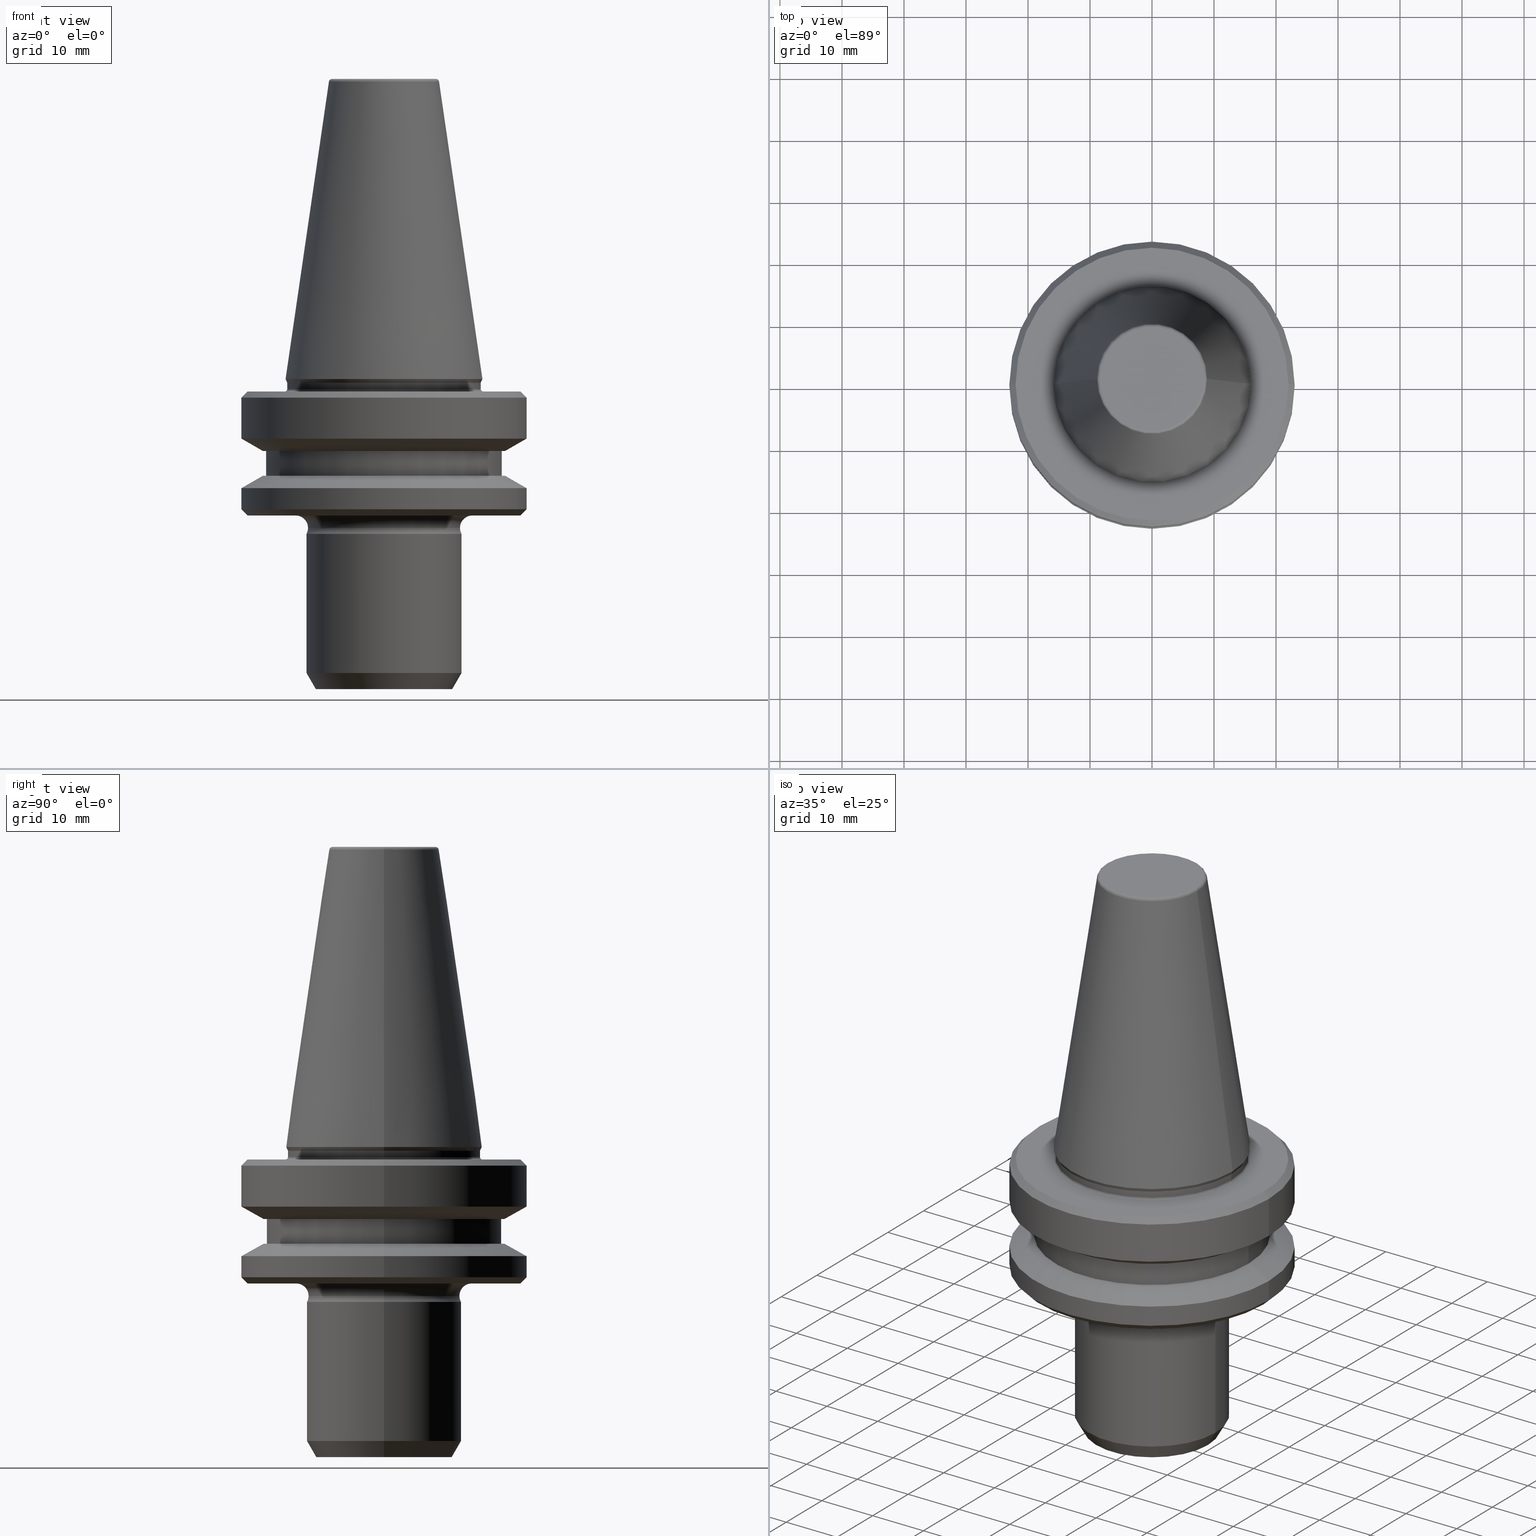
[diagram: canonical four-view strip — front | top / right | iso, engineering-drawing reading convention]
A machine part, canonical four-view strip (front | top / right | iso — engineering-drawing reading convention). The complete STEP part file that produces these views, byte-faithful:
ISO-10303-21;
HEADER;
FILE_DESCRIPTION (( 'STEP AP203' ),
    '1' );
FILE_NAME ('BT30 MT01 050 6.3G 15000 SL.STEP',
    '2019-05-24T04:19:52',
    ( '' ),
    ( '' ),
    'SwSTEP 2.0',
    'SolidWorks 2014',
    '' );
FILE_SCHEMA (( 'CONFIG_CONTROL_DESIGN' ));
ENDSEC;

DATA;
#1 = DIRECTION ( 'NONE',  ( -1.000000000000000000, 1.224646799147353000E-016, 0.0000000000000000000 ) ) ;
#2 = DIRECTION ( 'NONE',  ( 1.000000000000000000, 0.0000000000000000000, 0.0000000000000000000 ) ) ;
#3 = AXIS2_PLACEMENT_3D ( 'NONE', #440, #992, #515 ) ;
#4 = DIRECTION ( 'NONE',  ( -0.0000000000000000000, -0.0000000000000000000, 1.000000000000000000 ) ) ;
#5 = VERTEX_POINT ( 'NONE', #687 ) ;
#6 = DIRECTION ( 'NONE',  ( -0.0000000000000000000, -0.0000000000000000000, 1.000000000000000000 ) ) ;
#7 = TOROIDAL_SURFACE ( 'NONE', #470, 16.00000000000045800, 0.4000000000002335000 ) ;
#8 = ORIENTED_EDGE ( 'NONE', *, *, #788, .F. ) ;
#9 = DIRECTION ( 'NONE',  ( -0.0000000000000000000, -0.0000000000000000000, 1.000000000000000000 ) ) ;
#10 = EDGE_LOOP ( 'NONE', ( #85, #122, #961, #152 ) ) ;
#11 = DIRECTION ( 'NONE',  ( -0.0000000000000000000, -0.0000000000000000000, 1.000000000000000000 ) ) ;
#12 = VERTEX_POINT ( 'NONE', #831 ) ;
#13 = VERTEX_POINT ( 'NONE', #404 ) ;
#14 = EDGE_CURVE ( 'NONE', #271, #141, #719, .T. ) ;
#15 = AXIS2_PLACEMENT_3D ( 'NONE', #857, #850, #134 ) ;
#16 = DIRECTION ( 'NONE',  ( 1.000000000000000000, 0.0000000000000000000, 0.0000000000000000000 ) ) ;
#17 = CARTESIAN_POINT ( 'NONE',  ( 0.0000000000000000000, 0.0000000000000000000, -15.59999999999994800 ) ) ;
#18 = DIRECTION ( 'NONE',  ( -0.0000000000000000000, -0.0000000000000000000, 1.000000000000000000 ) ) ;
#19 = COORDINATED_UNIVERSAL_TIME_OFFSET ( 5, 30, .AHEAD. ) ;
#20 = FACE_BOUND ( 'NONE', #473, .T. ) ;
#21 = EDGE_LOOP ( 'NONE', ( #326, #655, #135, #293 ) ) ;
#22 = ORIENTED_EDGE ( 'NONE', *, *, #804, .T. ) ;
#23 = EDGE_LOOP ( 'NONE', ( #539, #179 ) ) ;
#24 = CARTESIAN_POINT ( 'NONE',  ( 0.0000000000000000000, 0.0000000000000000000, -0.5897394031394442800 ) ) ;
#25 = EDGE_CURVE ( 'NONE', #285, #36, #920, .T. ) ;
#26 = ORIENTED_EDGE ( 'NONE', *, *, #545, .T. ) ;
#27 = EDGE_CURVE ( 'NONE', #205, #597, #736, .T. ) ;
#28 = CARTESIAN_POINT ( 'NONE',  ( 16.00000000000045800, 0.0000000000000000000, -1.599999999999934800 ) ) ;
#29 = DIRECTION ( 'NONE',  ( -0.0000000000000000000, -0.0000000000000000000, 1.000000000000000000 ) ) ;
#30 = EDGE_CURVE ( 'NONE', #744, #652, #729, .T. ) ;
#31 = CIRCLE ( 'NONE', #308, 16.00000000000045800 ) ;
#32 = VERTEX_POINT ( 'NONE', #254 ) ;
#33 = EDGE_CURVE ( 'NONE', #469, #648, #72, .T. ) ;
#34 = LINE ( 'NONE', #330, #446 ) ;
#35 = PERSON_AND_ORGANIZATION_ROLE ( 'design_supplier' ) ;
#36 = VERTEX_POINT ( 'NONE', #968 ) ;
#37 = CARTESIAN_POINT ( 'NONE',  ( 0.0000000000000000000, 0.0000000000000000000, 102.7767479270557900 ) ) ;
#38 = ORIENTED_EDGE ( 'NONE', *, *, #439, .F. ) ;
#39 = VERTEX_POINT ( 'NONE', #145 ) ;
#40 = AXIS2_PLACEMENT_3D ( 'NONE', #948, #867, #246 ) ;
#41 = ADVANCED_FACE ( 'NONE', ( #812 ), #795, .T. ) ;
#42 = DIRECTION ( 'NONE',  ( -0.0000000000000000000, -0.0000000000000000000, 1.000000000000000000 ) ) ;
#43 = APPROVAL_PERSON_ORGANIZATION ( #880, #105, #531 ) ;
#44 = DIRECTION ( 'NONE',  ( 1.000000000000000000, 0.0000000000000000000, 0.0000000000000000000 ) ) ;
#45 = FACE_OUTER_BOUND ( 'NONE', #56, .T. ) ;
#46 = CARTESIAN_POINT ( 'NONE',  ( 11.00000000000045800, 0.0000000000000000000, -50.00000000000004300 ) ) ;
#47 = EDGE_LOOP ( 'NONE', ( #984, #354, #115, #874 ) ) ;
#48 = EDGE_CURVE ( 'NONE', #875, #13, #670, .T. ) ;
#49 = ORIENTED_EDGE ( 'NONE', *, *, #504, .F. ) ;
#50 = ORIENTED_EDGE ( 'NONE', *, *, #704, .T. ) ;
#51 = CARTESIAN_POINT ( 'NONE',  ( 22.99999999999990800, 0.0000000000000000000, 102.7767479270557900 ) ) ;
#52 = ORIENTED_EDGE ( 'NONE', *, *, #567, .T. ) ;
#53 = AXIS2_PLACEMENT_3D ( 'NONE', #279, #587, #97 ) ;
#54 = FACE_OUTER_BOUND ( 'NONE', #894, .T. ) ;
#55 = ORIENTED_EDGE ( 'NONE', *, *, #320, .F. ) ;
#56 = EDGE_LOOP ( 'NONE', ( #38, #484, #207, #106 ) ) ;
#57 = AXIS2_PLACEMENT_3D ( 'NONE', #181, #11, #580 ) ;
#58 = DIRECTION ( 'NONE',  ( -0.0000000000000000000, -0.0000000000000000000, 1.000000000000000000 ) ) ;
#59 = AXIS2_PLACEMENT_3D ( 'NONE', #62, #636, #952 ) ;
#60 = VERTEX_POINT ( 'NONE', #555 ) ;
#61 = DIRECTION ( 'NONE',  ( 1.000000000000000000, 0.0000000000000000000, 0.0000000000000000000 ) ) ;
#62 = CARTESIAN_POINT ( 'NONE',  ( -14.25000000000009600, 1.745121688784990300E-015, -24.00000000000002100 ) ) ;
#63 = CARTESIAN_POINT ( 'NONE',  ( 19.00000000000012800, 0.0000000000000000000, -11.59999999999950000 ) ) ;
#64 = CARTESIAN_POINT ( 'NONE',  ( -12.50000000000040000, 1.530808498934240400E-015, 102.7767479270557900 ) ) ;
#65 = EDGE_CURVE ( 'NONE', #973, #537, #789, .T. ) ;
#66 = DATE_AND_TIME ( #300, #502 ) ;
#67 = EDGE_LOOP ( 'NONE', ( #388, #1036, #240, #822 ) ) ;
#68 = DIRECTION ( 'NONE',  ( -0.0000000000000000000, -0.0000000000000000000, 1.000000000000000000 ) ) ;
#69 = CIRCLE ( 'NONE', #851, 2.000000000000005300 ) ;
#70 = ORIENTED_EDGE ( 'NONE', *, *, #628, .F. ) ;
#71 = CARTESIAN_POINT ( 'NONE',  ( -15.87499999999997200, 0.0000000000000000000, 1.665334536937734800E-013 ) ) ;
#72 = LINE ( 'NONE', #651, #780 ) ;
#73 = AXIS2_PLACEMENT_3D ( 'NONE', #575, #977, #1052 ) ;
#74 = DIRECTION ( 'NONE',  ( 1.000000000000000000, 0.0000000000000000000, 0.0000000000000000000 ) ) ;
#75 = VERTEX_POINT ( 'NONE', #325 ) ;
#76 = CARTESIAN_POINT ( 'NONE',  ( 0.0000000000000000000, 0.0000000000000000000, -22.00000000000002100 ) ) ;
#77 = DIRECTION ( 'NONE',  ( -0.0000000000000000000, -0.0000000000000000000, 1.000000000000000000 ) ) ;
#78 = AXIS2_PLACEMENT_3D ( 'NONE', #616, #464, #618 ) ;
#79 = DIRECTION ( 'NONE',  ( -0.0000000000000000000, -0.0000000000000000000, 1.000000000000000000 ) ) ;
#80 = CARTESIAN_POINT ( 'NONE',  ( -22.99999999999990800, 0.0000000000000000000, -2.999999999999891600 ) ) ;
#81 = CONICAL_SURFACE ( 'NONE', #1016, 15.87499999999997200, 0.1448138461595665200 ) ;
#82 = FACE_OUTER_BOUND ( 'NONE', #667, .T. ) ;
#83 = ADVANCED_FACE ( 'NONE', ( #797 ), #781, .T. ) ;
#84 = EDGE_LOOP ( 'NONE', ( #101, #52, #743, #1000 ) ) ;
#85 = ORIENTED_EDGE ( 'NONE', *, *, #249, .F. ) ;
#86 = ORIENTED_EDGE ( 'NONE', *, *, #25, .T. ) ;
#87 = CARTESIAN_POINT ( 'NONE',  ( 0.0000000000000000000, 0.0000000000000000000, -0.5897394031394442800 ) ) ;
#88 = ORIENTED_EDGE ( 'NONE', *, *, #913, .T. ) ;
#89 = DIRECTION ( 'NONE',  ( 1.000000000000000000, 0.0000000000000000000, 0.0000000000000000000 ) ) ;
#90 = CARTESIAN_POINT ( 'NONE',  ( 0.0000000000000000000, 0.0000000000000000000, 47.89999999999960800 ) ) ;
#91 = CARTESIAN_POINT ( 'NONE',  ( 22.99999999999990800, 0.0000000000000000000, -9.600117335054669400 ) ) ;
#92 = PERSON_AND_ORGANIZATION ( #783, #426 ) ;
#93 = CIRCLE ( 'NONE', #882, 11.00000000000045800 ) ;
#94 = ADVANCED_FACE ( 'NONE', ( #717 ), #832, .T. ) ;
#95 = VERTEX_POINT ( 'NONE', #278 ) ;
#96 = EDGE_LOOP ( 'NONE', ( #162, #109, #613, #8 ) ) ;
#97 = DIRECTION ( 'NONE',  ( 1.000000000000000000, 0.0000000000000000000, 0.0000000000000000000 ) ) ;
#98 = ORIENTED_EDGE ( 'NONE', *, *, #936, .F. ) ;
#99 = EDGE_LOOP ( 'NONE', ( #133, #767, #593, #919 ) ) ;
#100 = AXIS2_PLACEMENT_3D ( 'NONE', #577, #270, #89 ) ;
#101 = ORIENTED_EDGE ( 'NONE', *, *, #295, .T. ) ;
#102 = AXIS2_PLACEMENT_3D ( 'NONE', #654, #348, #895 ) ;
#103 = CARTESIAN_POINT ( 'NONE',  ( 0.0000000000000000000, 0.0000000000000000000, 1.665334536937734800E-013 ) ) ;
#104 = CARTESIAN_POINT ( 'NONE',  ( 0.0000000000000000000, 0.0000000000000000000, -0.5897394031394442800 ) ) ;
#105 = APPROVAL ( #951, 'UNSPECIFIED' ) ;
#106 = ORIENTED_EDGE ( 'NONE', *, *, #463, .T. ) ;
#107 = CIRCLE ( 'NONE', #59, 2.000000000000005300 ) ;
#108 = CARTESIAN_POINT ( 'NONE',  ( -22.99999999999990800, 2.816687638038901300E-015, 102.7767479270557900 ) ) ;
#109 = ORIENTED_EDGE ( 'NONE', *, *, #738, .T. ) ;
#110 = ORIENTED_EDGE ( 'NONE', *, *, #350, .F. ) ;
#111 =( LENGTH_UNIT ( ) NAMED_UNIT ( * ) SI_UNIT ( .MILLI., .METRE. ) );
#112 = ORIENTED_EDGE ( 'NONE', *, *, #590, .T. ) ;
#113 = ORIENTED_EDGE ( 'NONE', *, *, #454, .F. ) ;
#114 = DIRECTION ( 'NONE',  ( 0.0000000000000000000, 0.0000000000000000000, -1.000000000000000000 ) ) ;
#115 = ORIENTED_EDGE ( 'NONE', *, *, #435, .T. ) ;
#116 = CARTESIAN_POINT ( 'NONE',  ( 22.99999999999990800, 0.0000000000000000000, 102.7767479270557900 ) ) ;
#117 = AXIS2_PLACEMENT_3D ( 'NONE', #1027, #274, #381 ) ;
#118 = DIRECTION ( 'NONE',  ( -0.0000000000000000000, -0.0000000000000000000, 1.000000000000000000 ) ) ;
#119 = PERSON_AND_ORGANIZATION ( #783, #426 ) ;
#120 = ORIENTED_EDGE ( 'NONE', *, *, #196, .F. ) ;
#121 = CIRCLE ( 'NONE', #897, 0.4000000000002335000 ) ;
#122 = ORIENTED_EDGE ( 'NONE', *, *, #1012, .F. ) ;
#123 = CARTESIAN_POINT ( 'NONE',  ( 0.0000000000000000000, 19.53610161513918800, -11.59999999999950000 ) ) ;
#124 = CYLINDRICAL_SURFACE ( 'NONE', #663, 22.99999999999990800 ) ;
#125 = ORIENTED_EDGE ( 'NONE', *, *, #913, .F. ) ;
#126 = VERTEX_POINT ( 'NONE', #286 ) ;
#127 = PLANE ( 'NONE',  #862 ) ;
#128 = DIRECTION ( 'NONE',  ( -0.0000000000000000000, -0.0000000000000000000, 1.000000000000000000 ) ) ;
#129 = AXIS2_PLACEMENT_3D ( 'NONE', #87, #324, #210 ) ;
#130 = DIRECTION ( 'NONE',  ( 1.000000000000000000, 0.0000000000000000000, 0.0000000000000000000 ) ) ;
#131 = AXIS2_PLACEMENT_3D ( 'NONE', #817, #349, #901 ) ;
#132 = CIRCLE ( 'NONE', #1025, 12.25000000000009100 ) ;
#133 = ORIENTED_EDGE ( 'NONE', *, *, #704, .F. ) ;
#134 = DIRECTION ( 'NONE',  ( 1.000000000000000000, 0.0000000000000000000, 0.0000000000000000000 ) ) ;
#135 = ORIENTED_EDGE ( 'NONE', *, *, #926, .T. ) ;
#136 = AXIS2_PLACEMENT_3D ( 'NONE', #305, #1040, #726 ) ;
#137 = ORIENTED_EDGE ( 'NONE', *, *, #144, .F. ) ;
#138 = VERTEX_POINT ( 'NONE', #954 ) ;
#139 = DIRECTION ( 'NONE',  ( -0.0000000000000000000, -0.0000000000000000000, 1.000000000000000000 ) ) ;
#140 = EDGE_LOOP ( 'NONE', ( #766, #251 ) ) ;
#141 = VERTEX_POINT ( 'NONE', #63 ) ;
#142 = EDGE_CURVE ( 'NONE', #306, #39, #735, .T. ) ;
#143 = DIRECTION ( 'NONE',  ( -0.8660254037844380400, 0.0000000000000000000, -0.5000000000000012200 ) ) ;
#144 = EDGE_CURVE ( 'NONE', #141, #13, #154, .T. ) ;
#145 = CARTESIAN_POINT ( 'NONE',  ( 15.87499999999997200, 0.0000000000000000000, 1.665334536937734800E-013 ) ) ;
#146 = COORDINATED_UNIVERSAL_TIME_OFFSET ( 5, 30, .AHEAD. ) ;
#147 = EDGE_LOOP ( 'NONE', ( #437, #985 ) ) ;
#148 = FACE_OUTER_BOUND ( 'NONE', #946, .T. ) ;
#149 = ORIENTED_EDGE ( 'NONE', *, *, #14, .T. ) ;
#150 = CC_DESIGN_APPROVAL ( #105, ( #1051 ) ) ;
#151 = DIRECTION ( 'NONE',  ( -0.0000000000000000000, -0.0000000000000000000, 1.000000000000000000 ) ) ;
#152 = ORIENTED_EDGE ( 'NONE', *, *, #142, .T. ) ;
#153 = EDGE_LOOP ( 'NONE', ( #754, #86, #317, #834 ) ) ;
#154 = CIRCLE ( 'NONE', #996, 19.00000000000012800 ) ;
#155 = CARTESIAN_POINT ( 'NONE',  ( 0.0000000000000000000, 0.0000000000000000000, 48.39999999999960100 ) ) ;
#156 = CARTESIAN_POINT ( 'NONE',  ( 0.0000000000000000000, 0.0000000000000000000, -1.599999999999934800 ) ) ;
#157 = AXIS2_PLACEMENT_3D ( 'NONE', #216, #223, #212 ) ;
#158 = DIRECTION ( 'NONE',  ( 1.000000000000000000, 0.0000000000000000000, 0.0000000000000000000 ) ) ;
#159 = DIRECTION ( 'NONE',  ( 1.000000000000000000, 0.0000000000000000000, 0.0000000000000000000 ) ) ;
#160 = AXIS2_PLACEMENT_3D ( 'NONE', #497, #4, #827 ) ;
#161 = DIRECTION ( 'NONE',  ( -0.0000000000000000000, -0.0000000000000000000, 1.000000000000000000 ) ) ;
#162 = ORIENTED_EDGE ( 'NONE', *, *, #514, .F. ) ;
#163 = CIRCLE ( 'NONE', #244, 0.4000000000002335000 ) ;
#164 = ORIENTED_EDGE ( 'NONE', *, *, #533, .T. ) ;
#165 = ADVANCED_FACE ( 'NONE', ( #884 ), #863, .T. ) ;
#166 = ORIENTED_EDGE ( 'NONE', *, *, #1023, .T. ) ;
#167 = AXIS2_PLACEMENT_3D ( 'NONE', #104, #672, #193 ) ;
#168 = CARTESIAN_POINT ( 'NONE',  ( 22.00000000000002100, 2.755455298081540000E-015, -2.000000000000001800 ) ) ;
#169 = VERTEX_POINT ( 'NONE', #889 ) ;
#170 =( GEOMETRIC_REPRESENTATION_CONTEXT ( 3 ) GLOBAL_UNCERTAINTY_ASSIGNED_CONTEXT ( ( #258 ) ) GLOBAL_UNIT_ASSIGNED_CONTEXT ( ( #111, #627, #442 ) ) REPRESENTATION_CONTEXT ( 'NONE', 'WORKASPACE' ) );
#171 = AXIS2_PLACEMENT_3D ( 'NONE', #24, #242, #987 ) ;
#172 = CIRCLE ( 'NONE', #448, 12.50000000000040000 ) ;
#173 = DIRECTION ( 'NONE',  ( 1.000000000000000000, 0.0000000000000000000, 0.0000000000000000000 ) ) ;
#174 = ORIENTED_EDGE ( 'NONE', *, *, #732, .F. ) ;
#175 = ADVANCED_FACE ( 'NONE', ( #933 ), #373, .T. ) ;
#176 = ORIENTED_EDGE ( 'NONE', *, *, #282, .F. ) ;
#177 = AXIS2_PLACEMENT_3D ( 'NONE', #786, #474, #1031 ) ;
#178 = DIRECTION ( 'NONE',  ( -0.0000000000000000000, -0.0000000000000000000, 1.000000000000000000 ) ) ;
#179 = ORIENTED_EDGE ( 'NONE', *, *, #198, .F. ) ;
#180 = EDGE_CURVE ( 'NONE', #60, #306, #765, .T. ) ;
#181 = CARTESIAN_POINT ( 'NONE',  ( 0.0000000000000000000, 0.0000000000000000000, -17.59988266494566400 ) ) ;
#182 = EDGE_LOOP ( 'NONE', ( #980, #402, #419, #902 ) ) ;
#183 = CARTESIAN_POINT ( 'NONE',  ( 0.0000000000000000000, 0.0000000000000000000, 102.7767479270557900 ) ) ;
#184 = DIRECTION ( 'NONE',  ( -0.7071067811865474600, 8.659560562354931600E-017, 0.7071067811865475700 ) ) ;
#185 = PERSON_AND_ORGANIZATION_ROLE ( 'creator' ) ;
#186 = ADVANCED_FACE ( 'NONE', ( #759 ), #709, .F. ) ;
#187 = EDGE_CURVE ( 'NONE', #12, #486, #418, .T. ) ;
#188 = FACE_OUTER_BOUND ( 'NONE', #496, .T. ) ;
#189 = DIRECTION ( 'NONE',  ( 1.000000000000000000, 0.0000000000000000000, 0.0000000000000000000 ) ) ;
#190 = CIRCLE ( 'NONE', #761, 19.53610161513918800 ) ;
#191 = ORIENTED_EDGE ( 'NONE', *, *, #144, .T. ) ;
#192 = EDGE_LOOP ( 'NONE', ( #268, #267, #88, #166 ) ) ;
#193 = DIRECTION ( 'NONE',  ( 1.000000000000000000, 0.0000000000000000000, 0.0000000000000000000 ) ) ;
#194 = AXIS2_PLACEMENT_3D ( 'NONE', #803, #161, #61 ) ;
#195 = CARTESIAN_POINT ( 'NONE',  ( 0.0000000000000000000, 0.0000000000000000000, -24.00000000000002100 ) ) ;
#196 = EDGE_CURVE ( 'NONE', #13, #141, #871, .T. ) ;
#197 = DATE_TIME_ROLE ( 'classification_date' ) ;
#198 = EDGE_CURVE ( 'NONE', #973, #445, #907, .T. ) ;
#199 = APPROVAL_ROLE ( '' ) ;
#200 = CONICAL_SURFACE ( 'NONE', #691, 21.99999999999990800, 0.7853981633974482800 ) ;
#201 = VERTEX_POINT ( 'NONE', #566 ) ;
#202 = CIRCLE ( 'NONE', #576, 0.4999999999999935100 ) ;
#203 = ORIENTED_EDGE ( 'NONE', *, *, #804, .F. ) ;
#204 = DIRECTION ( 'NONE',  ( -0.0000000000000000000, -0.0000000000000000000, 1.000000000000000000 ) ) ;
#205 = VERTEX_POINT ( 'NONE', #416 ) ;
#206 = CARTESIAN_POINT ( 'NONE',  ( -22.99999999999990800, 2.816687638038901300E-015, -21.00000000000001800 ) ) ;
#207 = ORIENTED_EDGE ( 'NONE', *, *, #355, .T. ) ;
#208 = DIRECTION ( 'NONE',  ( 0.0000000000000000000, 0.0000000000000000000, -1.000000000000000000 ) ) ;
#209 = EDGE_LOOP ( 'NONE', ( #460, #509, #224, #55 ) ) ;
#210 = DIRECTION ( 'NONE',  ( 1.000000000000000000, 0.0000000000000000000, 0.0000000000000000000 ) ) ;
#211 = DIRECTION ( 'NONE',  ( -1.000000000000000000, 0.0000000000000000000, 0.0000000000000000000 ) ) ;
#212 = DIRECTION ( 'NONE',  ( 0.0000000000000000000, 0.0000000000000000000, -1.000000000000000000 ) ) ;
#213 = DIRECTION ( 'NONE',  ( -0.0000000000000000000, -0.0000000000000000000, 1.000000000000000000 ) ) ;
#214 = CIRCLE ( 'NONE', #671, 12.50000000000040000 ) ;
#215 = CC_DESIGN_APPROVAL ( #602, ( #493 ) ) ;
#216 = CARTESIAN_POINT ( 'NONE',  ( 8.384228427309292200, 0.0000000000000000000, 47.89999999999960800 ) ) ;
#217 = CALENDAR_DATE ( 2019, 24, 5 ) ;
#218 = ADVANCED_FACE ( 'NONE', ( #698 ), #585, .T. ) ;
#219 = CONICAL_SURFACE ( 'NONE', #372, 22.99999999999990800, 1.047197551196596300 ) ;
#220 = ORIENTED_EDGE ( 'NONE', *, *, #599, .T. ) ;
#221 = DIRECTION ( 'NONE',  ( -1.000000000000000000, 0.0000000000000000000, -0.0000000000000000000 ) ) ;
#222 = ORIENTED_EDGE ( 'NONE', *, *, #48, .F. ) ;
#223 = DIRECTION ( 'NONE',  ( 0.0000000000000000000, -1.000000000000000000, 0.0000000000000000000 ) ) ;
#224 = ORIENTED_EDGE ( 'NONE', *, *, #530, .T. ) ;
#225 = MECHANICAL_CONTEXT ( 'NONE', #640, 'mechanical' ) ;
#226 = ORIENTED_EDGE ( 'NONE', *, *, #684, .T. ) ;
#227 = ORIENTED_EDGE ( 'NONE', *, *, #974, .T. ) ;
#228 = AXIS2_PLACEMENT_3D ( 'NONE', #898, #204, #661 ) ;
#229 = DIRECTION ( 'NONE',  ( -0.0000000000000000000, -0.0000000000000000000, 1.000000000000000000 ) ) ;
#230 = DIRECTION ( 'NONE',  ( 1.000000000000000000, 0.0000000000000000000, 0.0000000000000000000 ) ) ;
#231 = AXIS2_PLACEMENT_3D ( 'NONE', #421, #178, #610 ) ;
#232 = CONICAL_SURFACE ( 'NONE', #868, 11.00000000000045800, 0.5235987755982889300 ) ;
#233 = ORIENTED_EDGE ( 'NONE', *, *, #523, .F. ) ;
#234 = DIRECTION ( 'NONE',  ( -0.0000000000000000000, -0.0000000000000000000, 1.000000000000000000 ) ) ;
#235 = VECTOR ( 'NONE', #963, 1000.000000000000000 ) ;
#236 = ORIENTED_EDGE ( 'NONE', *, *, #768, .T. ) ;
#237 = AXIS2_PLACEMENT_3D ( 'NONE', #488, #337, #74 ) ;
#238 = ORIENTED_EDGE ( 'NONE', *, *, #287, .F. ) ;
#239 = CARTESIAN_POINT ( 'NONE',  ( -22.99999999999990800, 2.816687638038901300E-015, -9.600117335054669400 ) ) ;
#240 = ORIENTED_EDGE ( 'NONE', *, *, #395, .F. ) ;
#241 = EDGE_LOOP ( 'NONE', ( #740, #226, #637, #596 ) ) ;
#242 = DIRECTION ( 'NONE',  ( -0.0000000000000000000, -0.0000000000000000000, 1.000000000000000000 ) ) ;
#243 = DIRECTION ( 'NONE',  ( -0.4999999999999914000, 6.123233995736661300E-017, 0.8660254037844435900 ) ) ;
#244 = AXIS2_PLACEMENT_3D ( 'NONE', #28, #840, #290 ) ;
#245 = DIRECTION ( 'NONE',  ( 1.000000000000000000, 0.0000000000000000000, 0.0000000000000000000 ) ) ;
#246 = DIRECTION ( 'NONE',  ( 1.000000000000000000, 0.0000000000000000000, 0.0000000000000000000 ) ) ;
#247 = LOCAL_TIME ( 9, 49, 52.00000000000000000, #19 ) ;
#248 = FACE_OUTER_BOUND ( 'NONE', #182, .T. ) ;
#249 = EDGE_CURVE ( 'NONE', #447, #39, #833, .T. ) ;
#250 = DIRECTION ( 'NONE',  ( -0.0000000000000000000, -0.0000000000000000000, 1.000000000000000000 ) ) ;
#251 = ORIENTED_EDGE ( 'NONE', *, *, #1029, .F. ) ;
#252 = ORIENTED_EDGE ( 'NONE', *, *, #298, .T. ) ;
#253 = ORIENTED_EDGE ( 'NONE', *, *, #684, .F. ) ;
#254 = CARTESIAN_POINT ( 'NONE',  ( 16.00000000000045800, 0.0000000000000000000, -2.000000000000085300 ) ) ;
#255 = CARTESIAN_POINT ( 'NONE',  ( 0.0000000000000000000, 0.0000000000000000000, -11.59999999999950000 ) ) ;
#256 = ORIENTED_EDGE ( 'NONE', *, *, #974, .F. ) ;
#257 = CARTESIAN_POINT ( 'NONE',  ( -19.00000000000012800, 2.326828918379986700E-015, -15.59999999999994800 ) ) ;
#258 = UNCERTAINTY_MEASURE_WITH_UNIT (LENGTH_MEASURE( 1.000000000000000100E-005 ), #111, 'distance_accuracy_value', 'NONE');
#259 = AXIS2_PLACEMENT_3D ( 'NONE', #695, #213, #770 ) ;
#260 = DIRECTION ( 'NONE',  ( 1.000000000000000000, 0.0000000000000000000, 0.0000000000000000000 ) ) ;
#261 = AXIS2_PLACEMENT_3D ( 'NONE', #916, #1013, #998 ) ;
#262 = CARTESIAN_POINT ( 'NONE',  ( 0.0000000000000000000, 11.00000000000045800, -50.00000000000004300 ) ) ;
#263 = FACE_OUTER_BOUND ( 'NONE', #935, .T. ) ;
#264 = EDGE_CURVE ( 'NONE', #447, #205, #635, .T. ) ;
#265 = DIRECTION ( 'NONE',  ( 0.0000000000000000000, 0.0000000000000000000, -1.000000000000000000 ) ) ;
#266 = LINE ( 'NONE', #406, #428 ) ;
#267 = ORIENTED_EDGE ( 'NONE', *, *, #758, .F. ) ;
#268 = ORIENTED_EDGE ( 'NONE', *, *, #745, .F. ) ;
#269 = AXIS2_PLACEMENT_3D ( 'NONE', #37, #605, #1003 ) ;
#270 = DIRECTION ( 'NONE',  ( -0.0000000000000000000, -0.0000000000000000000, 1.000000000000000000 ) ) ;
#271 = VERTEX_POINT ( 'NONE', #401 ) ;
#272 = ADVANCED_FACE ( 'NONE', ( #553 ), #124, .T. ) ;
#273 = ADVANCED_FACE ( 'NONE', ( #923 ), #508, .F. ) ;
#274 = DIRECTION ( 'NONE',  ( -0.0000000000000000000, -0.0000000000000000000, 1.000000000000000000 ) ) ;
#275 = PERSON_AND_ORGANIZATION ( #783, #426 ) ;
#276 = LINE ( 'NONE', #116, #467 ) ;
#277 = ADVANCED_FACE ( 'NONE', ( #656 ), #958, .T. ) ;
#278 = CARTESIAN_POINT ( 'NONE',  ( 22.99999999999990800, 0.0000000000000000000, -21.00000000000001800 ) ) ;
#279 = CARTESIAN_POINT ( 'NONE',  ( 0.0000000000000000000, 0.0000000000000000000, 47.97215411344135600 ) ) ;
#280 = EDGE_LOOP ( 'NONE', ( #49, #409, #944, #176 ) ) ;
#281 = ORIENTED_EDGE ( 'NONE', *, *, #196, .T. ) ;
#282 = EDGE_CURVE ( 'NONE', #126, #995, #562, .T. ) ;
#283 = DIRECTION ( 'NONE',  ( 1.000000000000000000, 0.0000000000000000000, 0.0000000000000000000 ) ) ;
#284 = EDGE_CURVE ( 'NONE', #1050, #5, #510, .T. ) ;
#285 = VERTEX_POINT ( 'NONE', #769 ) ;
#286 = CARTESIAN_POINT ( 'NONE',  ( -12.50000000000040000, 1.530808498934240400E-015, -24.96824583655243800 ) ) ;
#287 = EDGE_CURVE ( 'NONE', #972, #420, #527, .T. ) ;
#288 = EDGE_CURVE ( 'NONE', #334, #696, #586, .T. ) ;
#289 = DIRECTION ( 'NONE',  ( 1.000000000000000000, 0.0000000000000000000, 0.0000000000000000000 ) ) ;
#290 = DIRECTION ( 'NONE',  ( 0.0000000000000000000, 0.0000000000000000000, -1.000000000000000000 ) ) ;
#291 = CYLINDRICAL_SURFACE ( 'NONE', #261, 19.00000000000012800 ) ;
#292 = ORIENTED_EDGE ( 'NONE', *, *, #27, .T. ) ;
#293 = ORIENTED_EDGE ( 'NONE', *, *, #355, .F. ) ;
#294 = VECTOR ( 'NONE', #865, 1000.000000000000000 ) ;
#295 = EDGE_CURVE ( 'NONE', #447, #60, #681, .T. ) ;
#296 = CARTESIAN_POINT ( 'NONE',  ( 0.0000000000000000000, 0.0000000000000000000, -22.00000000000002100 ) ) ;
#297 = EDGE_CURVE ( 'NONE', #486, #12, #552, .T. ) ;
#298 = EDGE_CURVE ( 'NONE', #285, #972, #678, .T. ) ;
#299 = VERTEX_POINT ( 'NONE', #904 ) ;
#300 = CALENDAR_DATE ( 2019, 24, 5 ) ;
#301 = ORIENTED_EDGE ( 'NONE', *, *, #180, .F. ) ;
#302 = CYLINDRICAL_SURFACE ( 'NONE', #269, 15.60000000000014200 ) ;
#303 = ORIENTED_EDGE ( 'NONE', *, *, #65, .T. ) ;
#304 = ORIENTED_EDGE ( 'NONE', *, *, #297, .T. ) ;
#305 = CARTESIAN_POINT ( 'NONE',  ( 0.0000000000000000000, 0.0000000000000000000, -21.00000000000001800 ) ) ;
#306 = VERTEX_POINT ( 'NONE', #664 ) ;
#307 = DIRECTION ( 'NONE',  ( 0.0000000000000000000, -0.0000000000000000000, 1.000000000000000000 ) ) ;
#308 = AXIS2_PLACEMENT_3D ( 'NONE', #760, #990, #846 ) ;
#309 = EDGE_LOOP ( 'NONE', ( #668, #1021, #947, #301 ) ) ;
#310 = CARTESIAN_POINT ( 'NONE',  ( 0.0000000000000000000, 0.0000000000000000000, -17.59988266494566400 ) ) ;
#311 = DIRECTION ( 'NONE',  ( -0.0000000000000000000, -0.0000000000000000000, 1.000000000000000000 ) ) ;
#312 = EDGE_CURVE ( 'NONE', #420, #648, #521, .T. ) ;
#313 = DIRECTION ( 'NONE',  ( 0.4999999999999914000, 0.0000000000000000000, 0.8660254037844435900 ) ) ;
#314 = CONICAL_SURFACE ( 'NONE', #675, 22.99999999999990800, 1.047197551196596300 ) ;
#315 = AXIS2_PLACEMENT_3D ( 'NONE', #444, #29, #529 ) ;
#316 = FACE_OUTER_BOUND ( 'NONE', #430, .T. ) ;
#317 = ORIENTED_EDGE ( 'NONE', *, *, #978, .T. ) ;
#318 = ORIENTED_EDGE ( 'NONE', *, *, #815, .F. ) ;
#319 = ORIENTED_EDGE ( 'NONE', *, *, #514, .T. ) ;
#320 = EDGE_CURVE ( 'NONE', #364, #710, #607, .T. ) ;
#321 = PRODUCT ( 'BT30 MT01 050 6.3G 15000 SL', 'BT30 MT01 050 6.3G 15000 SL', '', ( #225 ) ) ;
#322 = DIRECTION ( 'NONE',  ( -0.0000000000000000000, -0.0000000000000000000, 1.000000000000000000 ) ) ;
#323 = DIRECTION ( 'NONE',  ( 1.000000000000000000, 0.0000000000000000000, 0.0000000000000000000 ) ) ;
#324 = DIRECTION ( 'NONE',  ( -0.0000000000000000000, -0.0000000000000000000, 1.000000000000000000 ) ) ;
#325 = CARTESIAN_POINT ( 'NONE',  ( 15.60000000000022500, 0.0000000000000000000, -1.599999999999934800 ) ) ;
#326 = ORIENTED_EDGE ( 'NONE', *, *, #297, .F. ) ;
#327 = ADVANCED_FACE ( 'NONE', ( #548 ), #683, .T. ) ;
#328 = DATE_AND_TIME ( #535, #739 ) ;
#329 = VECTOR ( 'NONE', #506, 1000.000000000000000 ) ;
#330 = CARTESIAN_POINT ( 'NONE',  ( -11.00000000000045800, 1.347111479062144600E-015, -50.00000000000004300 ) ) ;
#331 = CONICAL_SURFACE ( 'NONE', #633, 22.99999999999990800, 0.7853981633974482800 ) ;
#332 = EDGE_LOOP ( 'NONE', ( #220, #706, #908, #70 ) ) ;
#333 = DIRECTION ( 'NONE',  ( 1.000000000000000000, 0.0000000000000000000, 0.0000000000000000000 ) ) ;
#334 = VERTEX_POINT ( 'NONE', #91 ) ;
#335 = AXIS2_PLACEMENT_3D ( 'NONE', #524, #647, #879 ) ;
#336 = DIRECTION ( 'NONE',  ( 1.000000000000000000, 0.0000000000000000000, 0.0000000000000000000 ) ) ;
#337 = DIRECTION ( 'NONE',  ( -0.0000000000000000000, -0.0000000000000000000, 1.000000000000000000 ) ) ;
#338 = EDGE_CURVE ( 'NONE', #39, #306, #813, .T. ) ;
#339 = DIRECTION ( 'NONE',  ( 0.0000000000000000000, 0.0000000000000000000, -1.000000000000000000 ) ) ;
#340 = DIRECTION ( 'NONE',  ( -0.8660254037844404800, 1.060575238724909000E-016, 0.4999999999999967800 ) ) ;
#341 = DIRECTION ( 'NONE',  ( 0.0000000000000000000, -0.0000000000000000000, 1.000000000000000000 ) ) ;
#342 = VECTOR ( 'NONE', #143, 999.9999999999998900 ) ;
#343 = ORIENTED_EDGE ( 'NONE', *, *, #284, .F. ) ;
#344 = AXIS2_PLACEMENT_3D ( 'NONE', #462, #1019, #941 ) ;
#345 = ORIENTED_EDGE ( 'NONE', *, *, #758, .T. ) ;
#346 = CARTESIAN_POINT ( 'NONE',  ( -16.00000000000045800, 1.959434878635820700E-015, -2.000000000000085300 ) ) ;
#347 = ORIENTED_EDGE ( 'NONE', *, *, #463, .F. ) ;
#348 = DIRECTION ( 'NONE',  ( -0.0000000000000000000, -0.0000000000000000000, 1.000000000000000000 ) ) ;
#349 = DIRECTION ( 'NONE',  ( -0.0000000000000000000, -0.0000000000000000000, 1.000000000000000000 ) ) ;
#350 = EDGE_CURVE ( 'NONE', #36, #285, #601, .T. ) ;
#351 = DIRECTION ( 'NONE',  ( -0.0000000000000000000, -0.0000000000000000000, 1.000000000000000000 ) ) ;
#352 = DIRECTION ( 'NONE',  ( 1.224646799147353200E-016, 1.000000000000000000, 0.0000000000000000000 ) ) ;
#353 = APPROVAL_DATE_TIME ( #558, #544 ) ;
#354 = ORIENTED_EDGE ( 'NONE', *, *, #936, .T. ) ;
#355 = EDGE_CURVE ( 'NONE', #12, #299, #549, .T. ) ;
#356 = FACE_OUTER_BOUND ( 'NONE', #192, .T. ) ;
#357 = ORIENTED_EDGE ( 'NONE', *, *, #825, .T. ) ;
#358 = ORIENTED_EDGE ( 'NONE', *, *, #1012, .T. ) ;
#359 = EDGE_CURVE ( 'NONE', #910, #201, #526, .T. ) ;
#360 = DIRECTION ( 'NONE',  ( 1.000000000000000000, 0.0000000000000000000, 0.0000000000000000000 ) ) ;
#361 = ORIENTED_EDGE ( 'NONE', *, *, #599, .F. ) ;
#362 = DIRECTION ( 'NONE',  ( -0.0000000000000000000, -0.0000000000000000000, 1.000000000000000000 ) ) ;
#363 = ADVANCED_FACE ( 'NONE', ( #621 ), #619, .T. ) ;
#364 = VERTEX_POINT ( 'NONE', #733 ) ;
#365 = DIRECTION ( 'NONE',  ( 1.000000000000000000, 0.0000000000000000000, 0.0000000000000000000 ) ) ;
#366 = EDGE_CURVE ( 'NONE', #710, #39, #828, .T. ) ;
#367 = PLANE ( 'NONE',  #391 ) ;
#368 = CYLINDRICAL_SURFACE ( 'NONE', #40, 22.99999999999990800 ) ;
#369 = CARTESIAN_POINT ( 'NONE',  ( 0.0000000000000000000, 0.0000000000000000000, -47.40192378864676900 ) ) ;
#370 = ORIENTED_EDGE ( 'NONE', *, *, #845, .T. ) ;
#371 = EDGE_LOOP ( 'NONE', ( #191, #281 ) ) ;
#372 = AXIS2_PLACEMENT_3D ( 'NONE', #310, #861, #773 ) ;
#373 = CYLINDRICAL_SURFACE ( 'NONE', #975, 22.99999999999990800 ) ;
#374 = AXIS2_PLACEMENT_3D ( 'NONE', #490, #890, #423 ) ;
#375 = CARTESIAN_POINT ( 'NONE',  ( 22.99999999999990800, 0.0000000000000000000, -17.59988266494566400 ) ) ;
#376 = DIRECTION ( 'NONE',  ( 0.0000000000000000000, 0.0000000000000000000, -1.000000000000000000 ) ) ;
#377 = ORIENTED_EDGE ( 'NONE', *, *, #264, .T. ) ;
#378 = CARTESIAN_POINT ( 'NONE',  ( -15.60000000000005800, 1.910449006669878000E-015, -0.5897394031394442800 ) ) ;
#379 = DIRECTION ( 'NONE',  ( 0.7071067811865474600, 0.0000000000000000000, 0.7071067811865475700 ) ) ;
#380 = AXIS2_PLACEMENT_3D ( 'NONE', #458, #700, #221 ) ;
#381 = DIRECTION ( 'NONE',  ( 1.000000000000000000, 0.0000000000000000000, 0.0000000000000000000 ) ) ;
#382 = CARTESIAN_POINT ( 'NONE',  ( -19.00000000000012800, 2.326828918379986700E-015, 102.7767479270557900 ) ) ;
#383 = CARTESIAN_POINT ( 'NONE',  ( -14.25000000000009600, 1.745121688784990300E-015, -22.00000000000002100 ) ) ;
#384 = CARTESIAN_POINT ( 'NONE',  ( 0.0000000000000000000, 0.0000000000000000000, -17.59988266494566400 ) ) ;
#385 = PERSON_AND_ORGANIZATION ( #783, #426 ) ;
#386 = EDGE_LOOP ( 'NONE', ( #810, #303, #233, #511 ) ) ;
#387 = FACE_OUTER_BOUND ( 'NONE', #21, .T. ) ;
#388 = ORIENTED_EDGE ( 'NONE', *, *, #732, .T. ) ;
#389 = DIRECTION ( 'NONE',  ( 1.224646799147353200E-016, 1.000000000000000000, 0.0000000000000000000 ) ) ;
#390 = EDGE_LOOP ( 'NONE', ( #113, #559, #22, #125 ) ) ;
#391 = AXIS2_PLACEMENT_3D ( 'NONE', #751, #997, #516 ) ;
#392 = DIRECTION ( 'NONE',  ( 0.0000000000000000000, 0.0000000000000000000, 1.000000000000000000 ) ) ;
#393 = CARTESIAN_POINT ( 'NONE',  ( -22.99999999999990800, 2.816687638038901300E-015, 102.7767479270557900 ) ) ;
#394 = PLANE ( 'NONE',  #380 ) ;
#395 = EDGE_CURVE ( 'NONE', #744, #201, #398, .T. ) ;
#396 = DIRECTION ( 'NONE',  ( 1.000000000000000000, 0.0000000000000000000, 0.0000000000000000000 ) ) ;
#397 = EDGE_CURVE ( 'NONE', #271, #875, #1004, .T. ) ;
#398 = CIRCLE ( 'NONE', #573, 2.000000000000005300 ) ;
#399 = FACE_OUTER_BOUND ( 'NONE', #792, .T. ) ;
#400 = EDGE_LOOP ( 'NONE', ( #450, #164, #1010, #98 ) ) ;
#401 = CARTESIAN_POINT ( 'NONE',  ( 19.00000000000012800, 0.0000000000000000000, -15.59999999999994800 ) ) ;
#402 = ORIENTED_EDGE ( 'NONE', *, *, #33, .T. ) ;
#403 = VECTOR ( 'NONE', #748, 1000.000000000000000 ) ;
#404 = CARTESIAN_POINT ( 'NONE',  ( -19.00000000000012800, 2.326828918379986700E-015, -11.59999999999950000 ) ) ;
#405 = AXIS2_PLACEMENT_3D ( 'NONE', #982, #322, #173 ) ;
#406 = CARTESIAN_POINT ( 'NONE',  ( -15.60000000000014200, 1.910449006669888700E-015, 102.7767479270557900 ) ) ;
#407 = PRODUCT_DEFINITION ( 'UNKNOWN', '', #493, #847 ) ;
#408 = FACE_BOUND ( 'NONE', #140, .T. ) ;
#409 = ORIENTED_EDGE ( 'NONE', *, *, #788, .T. ) ;
#410 = ADVANCED_FACE ( 'NONE', ( #662 ), #866, .T. ) ;
#411 = DIRECTION ( 'NONE',  ( 1.000000000000000000, 0.0000000000000000000, 0.0000000000000000000 ) ) ;
#412 = AXIS2_PLACEMENT_3D ( 'NONE', #742, #79, #476 ) ;
#413 = ADVANCED_FACE ( 'NONE', ( #630 ), #969, .F. ) ;
#414 = LINE ( 'NONE', #814, #713 ) ;
#415 = DIRECTION ( 'NONE',  ( -0.0000000000000000000, -0.0000000000000000000, 1.000000000000000000 ) ) ;
#416 = CARTESIAN_POINT ( 'NONE',  ( 8.384228427309182100, 0.0000000000000000000, 48.39999999999960100 ) ) ;
#417 = FACE_OUTER_BOUND ( 'NONE', #731, .T. ) ;
#418 = CIRCLE ( 'NONE', #237, 22.00000000000002100 ) ;
#419 = ORIENTED_EDGE ( 'NONE', *, *, #811, .T. ) ;
#420 = VERTEX_POINT ( 'NONE', #886 ) ;
#421 = CARTESIAN_POINT ( 'NONE',  ( 0.0000000000000000000, 0.0000000000000000000, -2.999999999999891600 ) ) ;
#422 = AXIS2_PLACEMENT_3D ( 'NONE', #90, #9, #554 ) ;
#423 = DIRECTION ( 'NONE',  ( 1.000000000000000000, 0.0000000000000000000, 0.0000000000000000000 ) ) ;
#424 = DIRECTION ( 'NONE',  ( -0.0000000000000000000, -0.0000000000000000000, 1.000000000000000000 ) ) ;
#425 = APPROVAL_ROLE ( '' ) ;
#426 = ORGANIZATION ( 'UNSPECIFIED', 'UNSPECIFIED', '' ) ;
#427 = AXIS2_PLACEMENT_3D ( 'NONE', #455, #311, #937 ) ;
#428 = VECTOR ( 'NONE', #234, 1000.000000000000000 ) ;
#429 = VERTEX_POINT ( 'NONE', #725 ) ;
#430 = EDGE_LOOP ( 'NONE', ( #625, #724, #572, #1011 ) ) ;
#431 = DIRECTION ( 'NONE',  ( 1.000000000000000000, 0.0000000000000000000, 0.0000000000000000000 ) ) ;
#432 = CARTESIAN_POINT ( 'NONE',  ( 0.0000000000000000000, 0.0000000000000000000, -17.59988266494566400 ) ) ;
#433 = DIRECTION ( 'NONE',  ( -0.7071067811865474600, 0.0000000000000000000, -0.7071067811865475700 ) ) ;
#434 = DATE_AND_TIME ( #217, #1044 ) ;
#435 = EDGE_CURVE ( 'NONE', #995, #126, #214, .T. ) ;
#436 = CONICAL_SURFACE ( 'NONE', #892, 22.99999999999990800, 0.7853981633974482800 ) ;
#437 = ORIENTED_EDGE ( 'NONE', *, *, #819, .F. ) ;
#438 = ORIENTED_EDGE ( 'NONE', *, *, #48, .T. ) ;
#439 = EDGE_CURVE ( 'NONE', #486, #696, #414, .T. ) ;
#440 = CARTESIAN_POINT ( 'NONE',  ( 0.0000000000000000000, 0.0000000000000000000, -9.600117335054669400 ) ) ;
#441 = DIRECTION ( 'NONE',  ( 1.000000000000000000, 0.0000000000000000000, 0.0000000000000000000 ) ) ;
#442 =( NAMED_UNIT ( * ) SI_UNIT ( $, .STERADIAN. ) SOLID_ANGLE_UNIT ( ) );
#443 = CIRCLE ( 'NONE', #551, 19.00000000000012800 ) ;
#444 = CARTESIAN_POINT ( 'NONE',  ( 0.0000000000000000000, 0.0000000000000000000, -1.599999999999934800 ) ) ;
#445 = VERTEX_POINT ( 'NONE', #881 ) ;
#446 = VECTOR ( 'NONE', #243, 1000.000000000000000 ) ;
#447 = VERTEX_POINT ( 'NONE', #720 ) ;
#448 = AXIS2_PLACEMENT_3D ( 'NONE', #369, #914, #441 ) ;
#449 = APPLICATION_CONTEXT ( 'configuration controlled 3d designs of mechanical parts and assemblies' ) ;
#450 = ORIENTED_EDGE ( 'NONE', *, *, #499, .F. ) ;
#451 = DIRECTION ( 'NONE',  ( 0.0000000000000000000, -1.000000000000000000, 0.0000000000000000000 ) ) ;
#452 = CARTESIAN_POINT ( 'NONE',  ( 0.0000000000000000000, 0.0000000000000000000, 47.97215411344135600 ) ) ;
#453 = DIRECTION ( 'NONE',  ( 0.8660254037844404800, 0.0000000000000000000, 0.4999999999999967800 ) ) ;
#454 = EDGE_CURVE ( 'NONE', #169, #75, #852, .T. ) ;
#455 = CARTESIAN_POINT ( 'NONE',  ( 0.0000000000000000000, 0.0000000000000000000, -50.00000000000004300 ) ) ;
#456 = CALENDAR_DATE ( 2019, 24, 5 ) ;
#457 = FACE_OUTER_BOUND ( 'NONE', #747, .T. ) ;
#458 = CARTESIAN_POINT ( 'NONE',  ( 0.0000000000000000000, 22.00000000000002100, -2.000000000000001800 ) ) ;
#459 = AXIS2_PLACEMENT_3D ( 'NONE', #798, #392, #411 ) ;
#460 = ORIENTED_EDGE ( 'NONE', *, *, #563, .F. ) ;
#461 = CARTESIAN_POINT ( 'NONE',  ( 0.0000000000000000000, 0.0000000000000000000, -2.000000000000001800 ) ) ;
#462 = CARTESIAN_POINT ( 'NONE',  ( 0.0000000000000000000, 0.0000000000000000000, 1.665334536937734800E-013 ) ) ;
#463 = EDGE_CURVE ( 'NONE', #299, #696, #1018, .T. ) ;
#464 = DIRECTION ( 'NONE',  ( -0.0000000000000000000, -0.0000000000000000000, 1.000000000000000000 ) ) ;
#465 = AXIS2_PLACEMENT_3D ( 'NONE', #536, #42, #615 ) ;
#466 = CARTESIAN_POINT ( 'NONE',  ( 0.0000000000000000000, 0.0000000000000000000, 1.665334536937734800E-013 ) ) ;
#467 = VECTOR ( 'NONE', #870, 1000.000000000000000 ) ;
#468 = CONICAL_SURFACE ( 'NONE', #956, 19.53610161513918800, 1.047197551196601400 ) ;
#469 = VERTEX_POINT ( 'NONE', #641 ) ;
#470 = AXIS2_PLACEMENT_3D ( 'NONE', #472, #796, #1032 ) ;
#471 = DIRECTION ( 'NONE',  ( -0.0000000000000000000, -0.0000000000000000000, 1.000000000000000000 ) ) ;
#472 = CARTESIAN_POINT ( 'NONE',  ( 0.0000000000000000000, 0.0000000000000000000, -1.599999999999934800 ) ) ;
#473 = EDGE_LOOP ( 'NONE', ( #357, #679 ) ) ;
#474 = DIRECTION ( 'NONE',  ( -0.0000000000000000000, -0.0000000000000000000, 1.000000000000000000 ) ) ;
#475 = CARTESIAN_POINT ( 'NONE',  ( 0.0000000000000000000, 0.0000000000000000000, -9.600117335054669400 ) ) ;
#476 = DIRECTION ( 'NONE',  ( 1.000000000000000000, 0.0000000000000000000, 0.0000000000000000000 ) ) ;
#477 = AXIS2_PLACEMENT_3D ( 'NONE', #787, #500, #16 ) ;
#478 = PRODUCT_DEFINITION_SHAPE ( 'NONE', 'NONE',  #407 ) ;
#479 = PERSON_AND_ORGANIZATION ( #783, #426 ) ;
#480 = DIRECTION ( 'NONE',  ( 1.000000000000000000, 0.0000000000000000000, 0.0000000000000000000 ) ) ;
#481 = CIRCLE ( 'NONE', #259, 12.50000000000040000 ) ;
#482 = CARTESIAN_POINT ( 'NONE',  ( 0.0000000000000000000, 0.0000000000000000000, -22.00000000000002100 ) ) ;
#483 = VECTOR ( 'NONE', #433, 1000.000000000000000 ) ;
#484 = ORIENTED_EDGE ( 'NONE', *, *, #187, .F. ) ;
#485 = CARTESIAN_POINT ( 'NONE',  ( 0.0000000000000000000, 0.0000000000000000000, -11.59999999999950000 ) ) ;
#486 = VERTEX_POINT ( 'NONE', #168 ) ;
#487 = ADVANCED_FACE ( 'NONE', ( #970 ), #468, .T. ) ;
#488 = CARTESIAN_POINT ( 'NONE',  ( 0.0000000000000000000, 0.0000000000000000000, -2.000000000000001800 ) ) ;
#489 = AXIS2_PLACEMENT_3D ( 'NONE', #262, #341, #260 ) ;
#490 = CARTESIAN_POINT ( 'NONE',  ( 0.0000000000000000000, 0.0000000000000000000, -15.59999999999994800 ) ) ;
#491 = ADVANCED_FACE ( 'NONE', ( #188 ), #368, .T. ) ;
#492 = EDGE_CURVE ( 'NONE', #646, #420, #547, .T. ) ;
#493 = PRODUCT_DEFINITION_FORMATION_WITH_SPECIFIED_SOURCE ( 'ANY', '', #321, .NOT_KNOWN. ) ;
#494 = DIRECTION ( 'NONE',  ( 1.224646799147353200E-016, 1.000000000000000000, 0.0000000000000000000 ) ) ;
#495 = LINE ( 'NONE', #685, #917 ) ;
#496 = EDGE_LOOP ( 'NONE', ( #253, #873, #808, #347 ) ) ;
#497 = CARTESIAN_POINT ( 'NONE',  ( 0.0000000000000000000, 0.0000000000000000000, -0.5897394031394442800 ) ) ;
#498 = ORIENTED_EDGE ( 'NONE', *, *, #530, .F. ) ;
#499 = EDGE_CURVE ( 'NONE', #201, #910, #132, .T. ) ;
#500 = DIRECTION ( 'NONE',  ( -0.0000000000000000000, -0.0000000000000000000, 1.000000000000000000 ) ) ;
#501 = DATE_TIME_ROLE ( 'creation_date' ) ;
#502 = LOCAL_TIME ( 9, 49, 52.00000000000000000, #716 ) ;
#503 = ORIENTED_EDGE ( 'NONE', *, *, #397, .T. ) ;
#504 = EDGE_CURVE ( 'NONE', #138, #126, #753, .T. ) ;
#505 = CIRCLE ( 'NONE', #465, 15.60000000000022500 ) ;
#506 = DIRECTION ( 'NONE',  ( -0.0000000000000000000, -0.0000000000000000000, 1.000000000000000000 ) ) ;
#507 = CARTESIAN_POINT ( 'NONE',  ( 0.0000000000000000000, 0.0000000000000000000, -2.000000000000001800 ) ) ;
#508 = TOROIDAL_SURFACE ( 'NONE', #78, 14.25000000000009600, 2.000000000000004400 ) ;
#509 = ORIENTED_EDGE ( 'NONE', *, *, #454, .T. ) ;
#510 = LINE ( 'NONE', #46, #626 ) ;
#511 = ORIENTED_EDGE ( 'NONE', *, *, #768, .F. ) ;
#512 = ORIENTED_EDGE ( 'NONE', *, *, #287, .T. ) ;
#513 = SECURITY_CLASSIFICATION_LEVEL ( 'unclassified' ) ;
#514 = EDGE_CURVE ( 'NONE', #429, #138, #34, .T. ) ;
#515 = DIRECTION ( 'NONE',  ( 1.000000000000000000, 0.0000000000000000000, 0.0000000000000000000 ) ) ;
#516 = DIRECTION ( 'NONE',  ( -1.000000000000000000, 0.0000000000000000000, -0.0000000000000000000 ) ) ;
#517 = CIRCLE ( 'NONE', #231, 22.99999999999990800 ) ;
#518 = AXIS2_PLACEMENT_3D ( 'NONE', #574, #534, #158 ) ;
#519 = APPLICATION_PROTOCOL_DEFINITION ( 'international standard', 'config_control_design', 1994, #449 ) ;
#520 = TOROIDAL_SURFACE ( 'NONE', #405, 14.25000000000009600, 2.000000000000004400 ) ;
#521 = CIRCLE ( 'NONE', #57, 22.99999999999990800 ) ;
#522 = ORIENTED_EDGE ( 'NONE', *, *, #785, .T. ) ;
#523 = EDGE_CURVE ( 'NONE', #334, #537, #872, .T. ) ;
#524 = CARTESIAN_POINT ( 'NONE',  ( 0.0000000000000000000, 0.0000000000000000000, 102.7767479270557900 ) ) ;
#525 = CARTESIAN_POINT ( 'NONE',  ( 22.99999999999990800, 0.0000000000000000000, -2.999999999999891600 ) ) ;
#526 = CIRCLE ( 'NONE', #102, 12.25000000000009100 ) ;
#527 = LINE ( 'NONE', #393, #645 ) ;
#528 = DIRECTION ( 'NONE',  ( 0.0000000000000000000, 0.0000000000000000000, -1.000000000000000000 ) ) ;
#529 = DIRECTION ( 'NONE',  ( 1.000000000000000000, 0.0000000000000000000, 0.0000000000000000000 ) ) ;
#530 = EDGE_CURVE ( 'NONE', #75, #710, #653, .T. ) ;
#531 = APPROVAL_ROLE ( '' ) ;
#532 = ADVANCED_BREP_SHAPE_REPRESENTATION ( 'BT30 MT01 050 6.3G 15000 SL', ( #820, #459 ), #170 ) ;
#533 = EDGE_CURVE ( 'NONE', #201, #126, #107, .T. ) ;
#534 = DIRECTION ( 'NONE',  ( -0.0000000000000000000, -0.0000000000000000000, 1.000000000000000000 ) ) ;
#535 = CALENDAR_DATE ( 2019, 24, 5 ) ;
#536 = CARTESIAN_POINT ( 'NONE',  ( 0.0000000000000000000, 0.0000000000000000000, -1.599999999999934800 ) ) ;
#537 = VERTEX_POINT ( 'NONE', #239 ) ;
#538 = FACE_OUTER_BOUND ( 'NONE', #983, .T. ) ;
#539 = ORIENTED_EDGE ( 'NONE', *, *, #876, .F. ) ;
#540 = AXIS2_PLACEMENT_3D ( 'NONE', #475, #790, #323 ) ;
#541 = DIRECTION ( 'NONE',  ( -0.0000000000000000000, -0.0000000000000000000, 1.000000000000000000 ) ) ;
#542 = DIRECTION ( 'NONE',  ( 1.000000000000000000, 0.0000000000000000000, 0.0000000000000000000 ) ) ;
#543 = ADVANCED_FACE ( 'NONE', ( #842 ), #7, .F. ) ;
#544 = APPROVAL ( #682, 'UNSPECIFIED' ) ;
#545 = EDGE_CURVE ( 'NONE', #646, #469, #943, .T. ) ;
#546 = DIRECTION ( 'NONE',  ( 1.000000000000000000, 0.0000000000000000000, 0.0000000000000000000 ) ) ;
#547 = LINE ( 'NONE', #631, #342 ) ;
#548 = FACE_OUTER_BOUND ( 'NONE', #84, .T. ) ;
#549 = LINE ( 'NONE', #80, #483 ) ;
#550 = VECTOR ( 'NONE', #945, 1000.000000000000200 ) ;
#551 = AXIS2_PLACEMENT_3D ( 'NONE', #17, #424, #283 ) ;
#552 = CIRCLE ( 'NONE', #1030, 22.00000000000002100 ) ;
#553 = FACE_OUTER_BOUND ( 'NONE', #564, .T. ) ;
#554 = DIRECTION ( 'NONE',  ( 1.000000000000000000, 0.0000000000000000000, 0.0000000000000000000 ) ) ;
#555 = CARTESIAN_POINT ( 'NONE',  ( -8.878994820583352900, 0.0000000000000000000, 47.97215411344135600 ) ) ;
#556 = AXIS2_PLACEMENT_3D ( 'NONE', #76, #801, #1006 ) ;
#557 = CARTESIAN_POINT ( 'NONE',  ( 0.0000000000000000000, 8.384228427309182100, 48.39999999999960800 ) ) ;
#558 = DATE_AND_TIME ( #762, #979 ) ;
#559 = ORIENTED_EDGE ( 'NONE', *, *, #745, .T. ) ;
#560 = LINE ( 'NONE', #108, #764 ) ;
#561 = DIRECTION ( 'NONE',  ( -0.0000000000000000000, -0.0000000000000000000, 1.000000000000000000 ) ) ;
#562 = CIRCLE ( 'NONE', #15, 12.50000000000040000 ) ;
#563 = EDGE_CURVE ( 'NONE', #169, #364, #266, .T. ) ;
#564 = EDGE_LOOP ( 'NONE', ( #238, #522, #227, #950 ) ) ;
#565 = DIRECTION ( 'NONE',  ( 1.000000000000000000, 0.0000000000000000000, 0.0000000000000000000 ) ) ;
#566 = CARTESIAN_POINT ( 'NONE',  ( -12.25000000000009100, 1.500192328955519000E-015, -24.00000000000002100 ) ) ;
#567 = EDGE_CURVE ( 'NONE', #60, #597, #202, .T. ) ;
#568 = CARTESIAN_POINT ( 'NONE',  ( 0.0000000000000000000, 0.0000000000000000000, -11.59999999999950000 ) ) ;
#569 = CONICAL_SURFACE ( 'NONE', #117, 19.53610161513918800, 1.047197551196601400 ) ;
#570 = ADVANCED_FACE ( 'NONE', ( #634 ), #520, .F. ) ;
#571 = CARTESIAN_POINT ( 'NONE',  ( -14.25000000000009600, 1.745121688784990300E-015, -24.00000000000002100 ) ) ;
#572 = ORIENTED_EDGE ( 'NONE', *, *, #492, .T. ) ;
#573 = AXIS2_PLACEMENT_3D ( 'NONE', #571, #494, #1 ) ;
#574 = CARTESIAN_POINT ( 'NONE',  ( 0.0000000000000000000, 0.0000000000000000000, -22.00000000000002100 ) ) ;
#575 = CARTESIAN_POINT ( 'NONE',  ( 0.0000000000000000000, 0.0000000000000000000, 102.7767479270557900 ) ) ;
#576 = AXIS2_PLACEMENT_3D ( 'NONE', #821, #352, #659 ) ;
#577 = CARTESIAN_POINT ( 'NONE',  ( 0.0000000000000000000, 0.0000000000000000000, 102.7767479270557900 ) ) ;
#578 = DIRECTION ( 'NONE',  ( 1.000000000000000000, 0.0000000000000000000, 0.0000000000000000000 ) ) ;
#579 = EDGE_CURVE ( 'NONE', #537, #334, #818, .T. ) ;
#580 = DIRECTION ( 'NONE',  ( 1.000000000000000000, 0.0000000000000000000, 0.0000000000000000000 ) ) ;
#581 = PERSON_AND_ORGANIZATION ( #783, #426 ) ;
#582 = ORIENTED_EDGE ( 'NONE', *, *, #563, .T. ) ;
#583 = DIRECTION ( 'NONE',  ( 1.000000000000000000, 0.0000000000000000000, 0.0000000000000000000 ) ) ;
#584 = TOROIDAL_SURFACE ( 'NONE', #989, 14.25000000000009600, 2.000000000000004400 ) ;
#585 = CONICAL_SURFACE ( 'NONE', #427, 11.00000000000045800, 0.5235987755982889300 ) ;
#586 = LINE ( 'NONE', #51, #294 ) ;
#587 = DIRECTION ( 'NONE',  ( -0.0000000000000000000, -0.0000000000000000000, 1.000000000000000000 ) ) ;
#588 = DIRECTION ( 'NONE',  ( 0.0000000000000000000, -1.000000000000000000, 0.0000000000000000000 ) ) ;
#589 = AXIS2_PLACEMENT_3D ( 'NONE', #482, #853, #431 ) ;
#590 = EDGE_CURVE ( 'NONE', #710, #364, #1033, .T. ) ;
#591 = CIRCLE ( 'NONE', #556, 14.25000000000009600 ) ;
#592 = CARTESIAN_POINT ( 'NONE',  ( -8.384228427309182100, 1.057067554674888800E-015, 48.39999999999960100 ) ) ;
#593 = ORIENTED_EDGE ( 'NONE', *, *, #366, .T. ) ;
#594 = ORIENTED_EDGE ( 'NONE', *, *, #395, .T. ) ;
#595 = DIRECTION ( 'NONE',  ( -0.0000000000000000000, -0.0000000000000000000, 1.000000000000000000 ) ) ;
#596 = ORIENTED_EDGE ( 'NONE', *, *, #288, .F. ) ;
#597 = VERTEX_POINT ( 'NONE', #592 ) ;
#598 = DIRECTION ( 'NONE',  ( -0.0000000000000000000, -0.0000000000000000000, 1.000000000000000000 ) ) ;
#599 = EDGE_CURVE ( 'NONE', #5, #138, #172, .T. ) ;
#600 = PLANE ( 'NONE',  #826 ) ;
#601 = CIRCLE ( 'NONE', #131, 21.99999999999990800 ) ;
#602 = APPROVAL ( #1035, 'UNSPECIFIED' ) ;
#603 = CARTESIAN_POINT ( 'NONE',  ( 0.0000000000000000000, 0.0000000000000000000, -2.999999999999891600 ) ) ;
#604 = CARTESIAN_POINT ( 'NONE',  ( 0.0000000000000000000, 0.0000000000000000000, -50.00000000000004300 ) ) ;
#605 = DIRECTION ( 'NONE',  ( -0.0000000000000000000, -0.0000000000000000000, 1.000000000000000000 ) ) ;
#606 = CC_DESIGN_DATE_AND_TIME_ASSIGNMENT ( #665, #197, ( #1051 ) ) ;
#607 = CIRCLE ( 'NONE', #160, 15.60000000000005800 ) ;
#608 = ADVANCED_FACE ( 'NONE', ( #408, #791 ), #367, .F. ) ;
#609 = LINE ( 'NONE', #836, #1009 ) ;
#610 = DIRECTION ( 'NONE',  ( 1.000000000000000000, 0.0000000000000000000, 0.0000000000000000000 ) ) ;
#611 = CLOSED_SHELL ( 'NONE', ( #186, #639, #327, #962, #823, #723, #543, #697, #175, #839, #410, #807, #165, #1039, #570, #991, #1005, #887, #413, #218, #94, #273, #800, #1049, #272, #909, #608, #930, #793, #487, #491, #774, #802, #714, #363, #41, #277, #83 ) ) ;
#612 = CARTESIAN_POINT ( 'NONE',  ( 0.0000000000000000000, 0.0000000000000000000, -50.00000000000004300 ) ) ;
#613 = ORIENTED_EDGE ( 'NONE', *, *, #284, .T. ) ;
#614 = VECTOR ( 'NONE', #184, 1000.000000000000000 ) ;
#615 = DIRECTION ( 'NONE',  ( 1.000000000000000000, 0.0000000000000000000, 0.0000000000000000000 ) ) ;
#616 = CARTESIAN_POINT ( 'NONE',  ( 0.0000000000000000000, 0.0000000000000000000, -24.00000000000002100 ) ) ;
#617 = AXIS2_PLACEMENT_3D ( 'NONE', #461, #1022, #546 ) ;
#618 = DIRECTION ( 'NONE',  ( 1.000000000000000000, 0.0000000000000000000, 0.0000000000000000000 ) ) ;
#619 = CYLINDRICAL_SURFACE ( 'NONE', #100, 15.60000000000014200 ) ;
#620 = CIRCLE ( 'NONE', #722, 11.00000000000045800 ) ;
#621 = FACE_OUTER_BOUND ( 'NONE', #209, .T. ) ;
#622 = CARTESIAN_POINT ( 'NONE',  ( -21.99999999999990800, 2.694222958124165800E-015, -22.00000000000002100 ) ) ;
#623 = CC_DESIGN_PERSON_AND_ORGANIZATION_ASSIGNMENT ( #479, #35, ( #493 ) ) ;
#624 = ORIENTED_EDGE ( 'NONE', *, *, #567, .F. ) ;
#625 = ORIENTED_EDGE ( 'NONE', *, *, #33, .F. ) ;
#626 = VECTOR ( 'NONE', #313, 1000.000000000000000 ) ;
#627 =( NAMED_UNIT ( * ) PLANE_ANGLE_UNIT ( ) SI_UNIT ( $, .RADIAN. ) );
#628 = EDGE_CURVE ( 'NONE', #5, #995, #609, .T. ) ;
#629 = CARTESIAN_POINT ( 'NONE',  ( 0.0000000000000000000, 0.0000000000000000000, -2.999999999999891600 ) ) ;
#630 = FACE_OUTER_BOUND ( 'NONE', #147, .T. ) ;
#631 = CARTESIAN_POINT ( 'NONE',  ( -22.99999999999990800, 0.0000000000000000000, -17.59988266494566400 ) ) ;
#632 = ORIENTED_EDGE ( 'NONE', *, *, #1029, .T. ) ;
#633 = AXIS2_PLACEMENT_3D ( 'NONE', #603, #114, #677 ) ;
#634 = FACE_OUTER_BOUND ( 'NONE', #400, .T. ) ;
#635 = CIRCLE ( 'NONE', #157, 0.4999999999999935100 ) ;
#636 = DIRECTION ( 'NONE',  ( 1.224646799147353200E-016, 1.000000000000000000, 0.0000000000000000000 ) ) ;
#637 = ORIENTED_EDGE ( 'NONE', *, *, #926, .F. ) ;
#638 = CARTESIAN_POINT ( 'NONE',  ( 0.0000000000000000000, 0.0000000000000000000, -24.00000000000002100 ) ) ;
#639 = ADVANCED_FACE ( 'NONE', ( #148 ), #584, .F. ) ;
#640 = APPLICATION_CONTEXT ( 'configuration controlled 3d designs of mechanical parts and assemblies' ) ;
#641 = CARTESIAN_POINT ( 'NONE',  ( 19.53610161513769200, 2.604585034559241000E-015, -15.59999999999994800 ) ) ;
#642 = CARTESIAN_POINT ( 'NONE',  ( 0.0000000000000000000, 0.0000000000000000000, -50.00000000000004300 ) ) ;
#643 = APPROVAL_DATE_TIME ( #434, #105 ) ;
#644 = CIRCLE ( 'NONE', #617, 16.00000000000045800 ) ;
#645 = VECTOR ( 'NONE', #128, 1000.000000000000000 ) ;
#646 = VERTEX_POINT ( 'NONE', #903 ) ;
#647 = DIRECTION ( 'NONE',  ( -0.0000000000000000000, -0.0000000000000000000, 1.000000000000000000 ) ) ;
#648 = VERTEX_POINT ( 'NONE', #375 ) ;
#649 = DIRECTION ( 'NONE',  ( 0.4226182617408959500, 0.0000000000000000000, 0.9063077870365583400 ) ) ;
#650 = CIRCLE ( 'NONE', #878, 8.878994820583352900 ) ;
#651 = CARTESIAN_POINT ( 'NONE',  ( 22.99999999999990800, 2.816687638038901300E-015, -17.59988266494566400 ) ) ;
#652 = VERTEX_POINT ( 'NONE', #918 ) ;
#653 = LINE ( 'NONE', #955, #235 ) ;
#654 = CARTESIAN_POINT ( 'NONE',  ( 0.0000000000000000000, 0.0000000000000000000, -24.00000000000002100 ) ) ;
#655 = ORIENTED_EDGE ( 'NONE', *, *, #439, .T. ) ;
#656 = FACE_OUTER_BOUND ( 'NONE', #10, .T. ) ;
#657 = EDGE_LOOP ( 'NONE', ( #624, #358, #377, #860 ) ) ;
#658 = CC_DESIGN_APPROVAL ( #544, ( #407 ) ) ;
#659 = DIRECTION ( 'NONE',  ( -1.000000000000000000, 1.224646799147351200E-016, 0.0000000000000000000 ) ) ;
#660 = ORIENTED_EDGE ( 'NONE', *, *, #338, .F. ) ;
#661 = DIRECTION ( 'NONE',  ( 1.000000000000000000, 0.0000000000000000000, 0.0000000000000000000 ) ) ;
#662 = FACE_OUTER_BOUND ( 'NONE', #756, .T. ) ;
#663 = AXIS2_PLACEMENT_3D ( 'NONE', #940, #771, #396 ) ;
#664 = CARTESIAN_POINT ( 'NONE',  ( -15.87499999999997200, 1.944126793646419700E-015, 1.665334536937734800E-013 ) ) ;
#665 = DATE_AND_TIME ( #456, #247 ) ;
#666 = VECTOR ( 'NONE', #453, 1000.000000000000100 ) ;
#667 = EDGE_LOOP ( 'NONE', ( #222, #632, #149, #120 ) ) ;
#668 = ORIENTED_EDGE ( 'NONE', *, *, #295, .F. ) ;
#669 = DIRECTION ( 'NONE',  ( -0.0000000000000000000, -0.0000000000000000000, 1.000000000000000000 ) ) ;
#670 = LINE ( 'NONE', #382, #329 ) ;
#671 = AXIS2_PLACEMENT_3D ( 'NONE', #1042, #809, #333 ) ;
#672 = DIRECTION ( 'NONE',  ( -0.0000000000000000000, -0.0000000000000000000, 1.000000000000000000 ) ) ;
#673 = DIRECTION ( 'NONE',  ( -0.0000000000000000000, -0.0000000000000000000, 1.000000000000000000 ) ) ;
#674 = APPROVAL_PERSON_ORGANIZATION ( #581, #544, #425 ) ;
#675 = AXIS2_PLACEMENT_3D ( 'NONE', #432, #339, #932 ) ;
#676 = FACE_OUTER_BOUND ( 'NONE', #332, .T. ) ;
#677 = DIRECTION ( 'NONE',  ( -1.000000000000000000, 0.0000000000000000000, 0.0000000000000000000 ) ) ;
#678 = LINE ( 'NONE', #622, #614 ) ;
#679 = ORIENTED_EDGE ( 'NONE', *, *, #30, .T. ) ;
#680 = DIRECTION ( 'NONE',  ( -0.0000000000000000000, -0.0000000000000000000, 1.000000000000000000 ) ) ;
#681 = CIRCLE ( 'NONE', #53, 8.878994820583352900 ) ;
#682 = APPROVAL_STATUS ( 'not_yet_approved' ) ;
#683 = TOROIDAL_SURFACE ( 'NONE', #922, 8.384228427309292200, 0.4999999999999932800 ) ;
#684 = EDGE_CURVE ( 'NONE', #537, #299, #560, .T. ) ;
#685 = CARTESIAN_POINT ( 'NONE',  ( 21.99999999999990800, 0.0000000000000000000, -22.00000000000002100 ) ) ;
#686 = CC_DESIGN_PERSON_AND_ORGANIZATION_ASSIGNMENT ( #692, #185, ( #493 ) ) ;
#687 = CARTESIAN_POINT ( 'NONE',  ( 12.50000000000040000, 0.0000000000000000000, -47.40192378864676900 ) ) ;
#688 = DIRECTION ( 'NONE',  ( 1.000000000000000000, 0.0000000000000000000, 0.0000000000000000000 ) ) ;
#689 = CARTESIAN_POINT ( 'NONE',  ( 0.0000000000000000000, 0.0000000000000000000, -2.999999999999891600 ) ) ;
#690 = CARTESIAN_POINT ( 'NONE',  ( 0.0000000000000000000, 0.0000000000000000000, -24.00000000000002100 ) ) ;
#691 = AXIS2_PLACEMENT_3D ( 'NONE', #296, #680, #230 ) ;
#692 = PERSON_AND_ORGANIZATION ( #783, #426 ) ;
#693 = CIRCLE ( 'NONE', #912, 22.99999999999990800 ) ;
#694 = DIRECTION ( 'NONE',  ( -0.0000000000000000000, -0.0000000000000000000, 1.000000000000000000 ) ) ;
#695 = CARTESIAN_POINT ( 'NONE',  ( 0.0000000000000000000, 0.0000000000000000000, -47.40192378864676900 ) ) ;
#696 = VERTEX_POINT ( 'NONE', #525 ) ;
#697 = ADVANCED_FACE ( 'NONE', ( #387 ), #331, .T. ) ;
#698 = FACE_OUTER_BOUND ( 'NONE', #96, .T. ) ;
#699 = DIRECTION ( 'NONE',  ( 1.000000000000000000, 0.0000000000000000000, 0.0000000000000000000 ) ) ;
#700 = DIRECTION ( 'NONE',  ( 0.0000000000000000000, 0.0000000000000000000, -1.000000000000000000 ) ) ;
#701 = CC_DESIGN_PERSON_AND_ORGANIZATION_ASSIGNMENT ( #119, #999, ( #407 ) ) ;
#702 = DIRECTION ( 'NONE',  ( -0.0000000000000000000, -0.0000000000000000000, 1.000000000000000000 ) ) ;
#703 = AXIS2_PLACEMENT_3D ( 'NONE', #794, #588, #376 ) ;
#704 = EDGE_CURVE ( 'NONE', #364, #306, #981, .T. ) ;
#705 = CIRCLE ( 'NONE', #703, 2.000000000000005300 ) ;
#706 = ORIENTED_EDGE ( 'NONE', *, *, #504, .T. ) ;
#707 = DIRECTION ( 'NONE',  ( 1.000000000000000000, 0.0000000000000000000, 0.0000000000000000000 ) ) ;
#708 = AXIS2_PLACEMENT_3D ( 'NONE', #183, #6, #583 ) ;
#709 = TOROIDAL_SURFACE ( 'NONE', #837, 14.25000000000009600, 2.000000000000004400 ) ;
#710 = VERTEX_POINT ( 'NONE', #838 ) ;
#711 = CC_DESIGN_PERSON_AND_ORGANIZATION_ASSIGNMENT ( #275, #993, ( #1051 ) ) ;
#712 = APPLICATION_PROTOCOL_DEFINITION ( 'international standard', 'config_control_design', 1994, #640 ) ;
#713 = VECTOR ( 'NONE', #727, 1000.000000000000000 ) ;
#714 = ADVANCED_FACE ( 'NONE', ( #356 ), #959, .F. ) ;
#715 = DIRECTION ( 'NONE',  ( 1.000000000000000000, 0.0000000000000000000, 0.0000000000000000000 ) ) ;
#716 = COORDINATED_UNIVERSAL_TIME_OFFSET ( 5, 30, .AHEAD. ) ;
#717 = FACE_OUTER_BOUND ( 'NONE', #280, .T. ) ;
#718 = LINE ( 'NONE', #843, #666 ) ;
#719 = LINE ( 'NONE', #1047, #403 ) ;
#720 = CARTESIAN_POINT ( 'NONE',  ( 8.878994820583352900, 1.515745026156876300E-015, 47.97215411344135600 ) ) ;
#721 = ORIENTED_EDGE ( 'NONE', *, *, #499, .T. ) ;
#722 = AXIS2_PLACEMENT_3D ( 'NONE', #642, #362, #816 ) ;
#723 = ADVANCED_FACE ( 'NONE', ( #538 ), #302, .T. ) ;
#724 = ORIENTED_EDGE ( 'NONE', *, *, #545, .F. ) ;
#725 = CARTESIAN_POINT ( 'NONE',  ( -11.00000000000045800, 1.438959988998192600E-015, -50.00000000000004300 ) ) ;
#726 = DIRECTION ( 'NONE',  ( 1.000000000000000000, 0.0000000000000000000, 0.0000000000000000000 ) ) ;
#727 = DIRECTION ( 'NONE',  ( 0.7071067811865474600, 8.659560562354931600E-017, -0.7071067811865475700 ) ) ;
#728 = VECTOR ( 'NONE', #58, 1000.000000000000000 ) ;
#729 = CIRCLE ( 'NONE', #589, 14.25000000000009600 ) ;
#730 = DIRECTION ( 'NONE',  ( -0.0000000000000000000, -0.0000000000000000000, 1.000000000000000000 ) ) ;
#731 = EDGE_LOOP ( 'NONE', ( #112, #50, #660, #779 ) ) ;
#732 = EDGE_CURVE ( 'NONE', #652, #910, #69, .T. ) ;
#733 = CARTESIAN_POINT ( 'NONE',  ( -15.60000000000005800, 1.910449006669883500E-015, -0.5897394031394442800 ) ) ;
#734 = CC_DESIGN_PERSON_AND_ORGANIZATION_ASSIGNMENT ( #385, #772, ( #321 ) ) ;
#735 = CIRCLE ( 'NONE', #412, 15.87499999999997200 ) ;
#736 = CIRCLE ( 'NONE', #1041, 8.384228427309182100 ) ;
#737 = CARTESIAN_POINT ( 'NONE',  ( 15.60000000000005800, 0.0000000000000000000, -0.5897394031394442800 ) ) ;
#738 = EDGE_CURVE ( 'NONE', #429, #1050, #93, .T. ) ;
#739 = LOCAL_TIME ( 9, 49, 52.00000000000000000, #957 ) ;
#740 = ORIENTED_EDGE ( 'NONE', *, *, #523, .T. ) ;
#741 = VECTOR ( 'NONE', #924, 1000.000000000000000 ) ;
#742 = CARTESIAN_POINT ( 'NONE',  ( 0.0000000000000000000, 0.0000000000000000000, 1.665334536937734800E-013 ) ) ;
#743 = ORIENTED_EDGE ( 'NONE', *, *, #27, .F. ) ;
#744 = VERTEX_POINT ( 'NONE', #383 ) ;
#745 = EDGE_CURVE ( 'NONE', #169, #1024, #121, .T. ) ;
#746 = PRODUCT_RELATED_PRODUCT_CATEGORY ( 'detail', '', ( #321 ) ) ;
#747 = EDGE_LOOP ( 'NONE', ( #971, #304 ) ) ;
#748 = DIRECTION ( 'NONE',  ( -0.0000000000000000000, -0.0000000000000000000, 1.000000000000000000 ) ) ;
#749 = AXIS2_PLACEMENT_3D ( 'NONE', #629, #139, #707 ) ;
#750 = CC_DESIGN_SECURITY_CLASSIFICATION ( #1051, ( #493 ) ) ;
#751 = CARTESIAN_POINT ( 'NONE',  ( 0.0000000000000000000, 19.53610161513769200, -15.59999999999994800 ) ) ;
#752 = CARTESIAN_POINT ( 'NONE',  ( 11.00000000000045800, 0.0000000000000000000, -50.00000000000004300 ) ) ;
#753 = LINE ( 'NONE', #64, #728 ) ;
#754 = ORIENTED_EDGE ( 'NONE', *, *, #298, .F. ) ;
#755 = CARTESIAN_POINT ( 'NONE',  ( -19.53610161513918800, 2.604585034559332500E-015, -11.59999999999950000 ) ) ;
#756 = EDGE_LOOP ( 'NONE', ( #503, #438, #137, #1038 ) ) ;
#757 = ORIENTED_EDGE ( 'NONE', *, *, #811, .F. ) ;
#758 = EDGE_CURVE ( 'NONE', #75, #169, #505, .T. ) ;
#759 = FACE_OUTER_BOUND ( 'NONE', #67, .T. ) ;
#760 = CARTESIAN_POINT ( 'NONE',  ( 0.0000000000000000000, 0.0000000000000000000, -2.000000000000001800 ) ) ;
#761 = AXIS2_PLACEMENT_3D ( 'NONE', #485, #730, #578 ) ;
#762 = CALENDAR_DATE ( 2019, 24, 5 ) ;
#763 = ORIENTED_EDGE ( 'NONE', *, *, #815, .T. ) ;
#764 = VECTOR ( 'NONE', #1001, 1000.000000000000000 ) ;
#765 = LINE ( 'NONE', #71, #921 ) ;
#766 = ORIENTED_EDGE ( 'NONE', *, *, #397, .F. ) ;
#767 = ORIENTED_EDGE ( 'NONE', *, *, #320, .T. ) ;
#768 = EDGE_CURVE ( 'NONE', #445, #334, #718, .T. ) ;
#769 = CARTESIAN_POINT ( 'NONE',  ( -21.99999999999990800, 2.755455298081533300E-015, -22.00000000000002100 ) ) ;
#770 = DIRECTION ( 'NONE',  ( 1.000000000000000000, 0.0000000000000000000, 0.0000000000000000000 ) ) ;
#771 = DIRECTION ( 'NONE',  ( -0.0000000000000000000, -0.0000000000000000000, 1.000000000000000000 ) ) ;
#772 = PERSON_AND_ORGANIZATION_ROLE ( 'design_owner' ) ;
#773 = DIRECTION ( 'NONE',  ( -1.000000000000000000, 0.0000000000000000000, 0.0000000000000000000 ) ) ;
#774 = ADVANCED_FACE ( 'NONE', ( #45 ), #436, .T. ) ;
#775 = CARTESIAN_POINT ( 'NONE',  ( 0.0000000000000000000, 0.0000000000000000000, -11.59999999999950000 ) ) ;
#776 = CC_DESIGN_DATE_AND_TIME_ASSIGNMENT ( #328, #501, ( #407 ) ) ;
#777 = EDGE_LOOP ( 'NONE', ( #899, #844, #236, #1014 ) ) ;
#778 = CIRCLE ( 'NONE', #228, 19.53610161513769200 ) ;
#779 = ORIENTED_EDGE ( 'NONE', *, *, #366, .F. ) ;
#780 = VECTOR ( 'NONE', #900, 999.9999999999998900 ) ;
#781 = TOROIDAL_SURFACE ( 'NONE', #422, 8.384228427309292200, 0.4999999999999932800 ) ;
#782 = AXIS2_PLACEMENT_3D ( 'NONE', #568, #77, #159 ) ;
#783 = PERSON ( 'UNSPECIFIED', 'UNSPECIFIED', 'UNSPECIFIED', ('UNSPECIFIED'), ('UNSPECIFIED'), ('UNSPECIFIED') ) ;
#784 = DIRECTION ( 'NONE',  ( 1.000000000000000000, 0.0000000000000000000, 0.0000000000000000000 ) ) ;
#785 = EDGE_CURVE ( 'NONE', #972, #95, #693, .T. ) ;
#786 = CARTESIAN_POINT ( 'NONE',  ( 0.0000000000000000000, 0.0000000000000000000, 102.7767479270557900 ) ) ;
#787 = CARTESIAN_POINT ( 'NONE',  ( 0.0000000000000000000, 0.0000000000000000000, -15.59999999999994800 ) ) ;
#788 = EDGE_CURVE ( 'NONE', #138, #5, #481, .T. ) ;
#789 = LINE ( 'NONE', #960, #896 ) ;
#790 = DIRECTION ( 'NONE',  ( -0.0000000000000000000, -0.0000000000000000000, 1.000000000000000000 ) ) ;
#791 = FACE_OUTER_BOUND ( 'NONE', #858, .T. ) ;
#792 = EDGE_LOOP ( 'NONE', ( #292, #929 ) ) ;
#793 = ADVANCED_FACE ( 'NONE', ( #906, #883 ), #849, .F. ) ;
#794 = CARTESIAN_POINT ( 'NONE',  ( 14.25000000000009600, 0.0000000000000000000, -24.00000000000002100 ) ) ;
#795 = CONICAL_SURFACE ( 'NONE', #171, 15.60000000000005800, 0.4363323129987992100 ) ;
#796 = DIRECTION ( 'NONE',  ( -0.0000000000000000000, -0.0000000000000000000, 1.000000000000000000 ) ) ;
#797 = FACE_OUTER_BOUND ( 'NONE', #657, .T. ) ;
#798 = CARTESIAN_POINT ( 'NONE',  ( 0.0000000000000000000, 0.0000000000000000000, 0.0000000000000000000 ) ) ;
#799 = DIRECTION ( 'NONE',  ( 1.000000000000000000, 0.0000000000000000000, 0.0000000000000000000 ) ) ;
#800 = ADVANCED_FACE ( 'NONE', ( #931, #20 ), #127, .F. ) ;
#801 = DIRECTION ( 'NONE',  ( -0.0000000000000000000, -0.0000000000000000000, 1.000000000000000000 ) ) ;
#802 = ADVANCED_FACE ( 'NONE', ( #855, #457 ), #394, .F. ) ;
#803 = CARTESIAN_POINT ( 'NONE',  ( 0.0000000000000000000, 0.0000000000000000000, 48.39999999999960100 ) ) ;
#804 = EDGE_CURVE ( 'NONE', #1024, #32, #644, .T. ) ;
#805 = CONICAL_SURFACE ( 'NONE', #129, 15.60000000000005800, 0.4363323129987992100 ) ;
#806 = DIRECTION ( 'NONE',  ( -0.1443082268835142200, 0.0000000000000000000, -0.9895327865481446900 ) ) ;
#807 = ADVANCED_FACE ( 'NONE', ( #248 ), #219, .T. ) ;
#808 = ORIENTED_EDGE ( 'NONE', *, *, #288, .T. ) ;
#809 = DIRECTION ( 'NONE',  ( -0.0000000000000000000, -0.0000000000000000000, 1.000000000000000000 ) ) ;
#810 = ORIENTED_EDGE ( 'NONE', *, *, #876, .T. ) ;
#811 = EDGE_CURVE ( 'NONE', #648, #420, #830, .T. ) ;
#812 = FACE_OUTER_BOUND ( 'NONE', #99, .T. ) ;
#813 = CIRCLE ( 'NONE', #1037, 15.87499999999997200 ) ;
#814 = CARTESIAN_POINT ( 'NONE',  ( 22.99999999999990800, 2.816687638038901300E-015, -2.999999999999891600 ) ) ;
#815 = EDGE_CURVE ( 'NONE', #95, #972, #1046, .T. ) ;
#816 = DIRECTION ( 'NONE',  ( 1.000000000000000000, 0.0000000000000000000, 0.0000000000000000000 ) ) ;
#817 = CARTESIAN_POINT ( 'NONE',  ( 0.0000000000000000000, 0.0000000000000000000, -22.00000000000002100 ) ) ;
#818 = CIRCLE ( 'NONE', #3, 22.99999999999990800 ) ;
#819 = EDGE_CURVE ( 'NONE', #1050, #429, #620, .T. ) ;
#820 = MANIFOLD_SOLID_BREP ( 'Revolve1', #611 ) ;
#821 = CARTESIAN_POINT ( 'NONE',  ( -8.384228427309292200, 1.026771850682457400E-015, 47.89999999999960800 ) ) ;
#822 = ORIENTED_EDGE ( 'NONE', *, *, #825, .F. ) ;
#823 = ADVANCED_FACE ( 'NONE', ( #417 ), #805, .T. ) ;
#824 = CARTESIAN_POINT ( 'NONE',  ( 12.25000000000009100, 0.0000000000000000000, -24.00000000000002100 ) ) ;
#825 = EDGE_CURVE ( 'NONE', #652, #744, #591, .T. ) ;
#826 = AXIS2_PLACEMENT_3D ( 'NONE', #557, #528, #966 ) ;
#827 = DIRECTION ( 'NONE',  ( 1.000000000000000000, 0.0000000000000000000, 0.0000000000000000000 ) ) ;
#828 = LINE ( 'NONE', #737, #877 ) ;
#829 = COORDINATED_UNIVERSAL_TIME_OFFSET ( 5, 30, .AHEAD. ) ;
#830 = CIRCLE ( 'NONE', #885, 22.99999999999990800 ) ;
#831 = CARTESIAN_POINT ( 'NONE',  ( -22.00000000000002100, 0.0000000000000000000, -2.000000000000001800 ) ) ;
#832 = CYLINDRICAL_SURFACE ( 'NONE', #335, 12.50000000000040000 ) ;
#833 = LINE ( 'NONE', #1028, #550 ) ;
#834 = ORIENTED_EDGE ( 'NONE', *, *, #785, .F. ) ;
#835 = CARTESIAN_POINT ( 'NONE',  ( 0.0000000000000000000, 0.0000000000000000000, -11.59999999999950000 ) ) ;
#836 = CARTESIAN_POINT ( 'NONE',  ( 12.50000000000040000, 0.0000000000000000000, 102.7767479270557900 ) ) ;
#837 = AXIS2_PLACEMENT_3D ( 'NONE', #690, #250, #967 ) ;
#838 = CARTESIAN_POINT ( 'NONE',  ( 15.60000000000005800, 0.0000000000000000000, -0.5897394031394442800 ) ) ;
#839 = ADVANCED_FACE ( 'NONE', ( #994 ), #569, .T. ) ;
#840 = DIRECTION ( 'NONE',  ( 0.0000000000000000000, -1.000000000000000000, 0.0000000000000000000 ) ) ;
#841 = FACE_OUTER_BOUND ( 'NONE', #153, .T. ) ;
#842 = FACE_OUTER_BOUND ( 'NONE', #390, .T. ) ;
#843 = CARTESIAN_POINT ( 'NONE',  ( 19.53610161513918800, 0.0000000000000000000, -11.59999999999950000 ) ) ;
#844 = ORIENTED_EDGE ( 'NONE', *, *, #198, .T. ) ;
#845 = EDGE_CURVE ( 'NONE', #469, #646, #778, .T. ) ;
#846 = DIRECTION ( 'NONE',  ( 1.000000000000000000, 0.0000000000000000000, 0.0000000000000000000 ) ) ;
#847 = DESIGN_CONTEXT ( 'detailed design', #449, 'design' ) ;
#848 = CARTESIAN_POINT ( 'NONE',  ( -16.00000000000045800, 1.959434878635821100E-015, -1.599999999999934800 ) ) ;
#849 = PLANE ( 'NONE',  #1043 ) ;
#850 = DIRECTION ( 'NONE',  ( -0.0000000000000000000, -0.0000000000000000000, 1.000000000000000000 ) ) ;
#851 = AXIS2_PLACEMENT_3D ( 'NONE', #925, #451, #1007 ) ;
#852 = CIRCLE ( 'NONE', #953, 15.60000000000022500 ) ;
#853 = DIRECTION ( 'NONE',  ( -0.0000000000000000000, -0.0000000000000000000, 1.000000000000000000 ) ) ;
#854 = DIRECTION ( 'NONE',  ( 1.000000000000000000, 0.0000000000000000000, 0.0000000000000000000 ) ) ;
#855 = FACE_BOUND ( 'NONE', #939, .T. ) ;
#856 = ORIENTED_EDGE ( 'NONE', *, *, #590, .F. ) ;
#857 = CARTESIAN_POINT ( 'NONE',  ( 0.0000000000000000000, 0.0000000000000000000, -24.96824583655243800 ) ) ;
#858 = EDGE_LOOP ( 'NONE', ( #26, #370 ) ) ;
#859 = CARTESIAN_POINT ( 'NONE',  ( 0.0000000000000000000, 0.0000000000000000000, -22.00000000000002100 ) ) ;
#860 = ORIENTED_EDGE ( 'NONE', *, *, #965, .F. ) ;
#861 = DIRECTION ( 'NONE',  ( 0.0000000000000000000, 0.0000000000000000000, -1.000000000000000000 ) ) ;
#862 = AXIS2_PLACEMENT_3D ( 'NONE', #934, #1017, #542 ) ;
#863 = CYLINDRICAL_SURFACE ( 'NONE', #177, 22.99999999999990800 ) ;
#864 = CARTESIAN_POINT ( 'NONE',  ( 12.50000000000040000, 0.0000000000000000000, -24.96824583655243800 ) ) ;
#865 = DIRECTION ( 'NONE',  ( -0.0000000000000000000, -0.0000000000000000000, 1.000000000000000000 ) ) ;
#866 = CYLINDRICAL_SURFACE ( 'NONE', #73, 19.00000000000012800 ) ;
#867 = DIRECTION ( 'NONE',  ( -0.0000000000000000000, -0.0000000000000000000, 1.000000000000000000 ) ) ;
#868 = AXIS2_PLACEMENT_3D ( 'NONE', #604, #1053, #480 ) ;
#869 = CYLINDRICAL_SURFACE ( 'NONE', #708, 12.50000000000040000 ) ;
#870 = DIRECTION ( 'NONE',  ( -0.0000000000000000000, -0.0000000000000000000, 1.000000000000000000 ) ) ;
#871 = CIRCLE ( 'NONE', #782, 19.00000000000012800 ) ;
#872 = CIRCLE ( 'NONE', #540, 22.99999999999990800 ) ;
#873 = ORIENTED_EDGE ( 'NONE', *, *, #579, .T. ) ;
#874 = ORIENTED_EDGE ( 'NONE', *, *, #533, .F. ) ;
#875 = VERTEX_POINT ( 'NONE', #257 ) ;
#876 = EDGE_CURVE ( 'NONE', #445, #973, #190, .T. ) ;
#877 = VECTOR ( 'NONE', #649, 1000.000000000000000 ) ;
#878 = AXIS2_PLACEMENT_3D ( 'NONE', #452, #351, #2 ) ;
#879 = DIRECTION ( 'NONE',  ( 1.000000000000000000, 0.0000000000000000000, 0.0000000000000000000 ) ) ;
#880 = PERSON_AND_ORGANIZATION ( #783, #426 ) ;
#881 = CARTESIAN_POINT ( 'NONE',  ( 19.53610161513918800, 0.0000000000000000000, -11.59999999999950000 ) ) ;
#882 = AXIS2_PLACEMENT_3D ( 'NONE', #612, #118, #688 ) ;
#883 = FACE_BOUND ( 'NONE', #371, .T. ) ;
#884 = FACE_OUTER_BOUND ( 'NONE', #949, .T. ) ;
#885 = AXIS2_PLACEMENT_3D ( 'NONE', #384, #595, #1045 ) ;
#886 = CARTESIAN_POINT ( 'NONE',  ( -22.99999999999990800, 2.816687638038901300E-015, -17.59988266494566400 ) ) ;
#887 = ADVANCED_FACE ( 'NONE', ( #399 ), #600, .F. ) ;
#888 = DIRECTION ( 'NONE',  ( -1.000000000000000000, 0.0000000000000000000, 0.0000000000000000000 ) ) ;
#889 = CARTESIAN_POINT ( 'NONE',  ( -15.60000000000022500, 1.934941942652859800E-015, -1.599999999999934800 ) ) ;
#890 = DIRECTION ( 'NONE',  ( -0.0000000000000000000, -0.0000000000000000000, 1.000000000000000000 ) ) ;
#891 = CONICAL_SURFACE ( 'NONE', #1002, 21.99999999999990800, 0.7853981633974482800 ) ;
#892 = AXIS2_PLACEMENT_3D ( 'NONE', #689, #208, #211 ) ;
#893 = CIRCLE ( 'NONE', #194, 8.384228427309182100 ) ;
#894 = EDGE_LOOP ( 'NONE', ( #1048, #252, #318, #964 ) ) ;
#895 = DIRECTION ( 'NONE',  ( 1.000000000000000000, 0.0000000000000000000, 0.0000000000000000000 ) ) ;
#896 = VECTOR ( 'NONE', #340, 1000.000000000000100 ) ;
#897 = AXIS2_PLACEMENT_3D ( 'NONE', #848, #389, #927 ) ;
#898 = CARTESIAN_POINT ( 'NONE',  ( 0.0000000000000000000, 0.0000000000000000000, -15.59999999999994800 ) ) ;
#899 = ORIENTED_EDGE ( 'NONE', *, *, #65, .F. ) ;
#900 = DIRECTION ( 'NONE',  ( 0.8660254037844380400, 1.060575238724906200E-016, -0.5000000000000012200 ) ) ;
#901 = DIRECTION ( 'NONE',  ( 1.000000000000000000, 0.0000000000000000000, 0.0000000000000000000 ) ) ;
#902 = ORIENTED_EDGE ( 'NONE', *, *, #492, .F. ) ;
#903 = CARTESIAN_POINT ( 'NONE',  ( -19.53610161513769200, 0.0000000000000000000, -15.59999999999994800 ) ) ;
#904 = CARTESIAN_POINT ( 'NONE',  ( -22.99999999999990800, 2.816687638038901300E-015, -2.999999999999891600 ) ) ;
#905 = APPROVAL_DATE_TIME ( #66, #602 ) ;
#906 = FACE_OUTER_BOUND ( 'NONE', #23, .T. ) ;
#907 = CIRCLE ( 'NONE', #942, 19.53610161513918800 ) ;
#908 = ORIENTED_EDGE ( 'NONE', *, *, #435, .F. ) ;
#909 = ADVANCED_FACE ( 'NONE', ( #316 ), #314, .T. ) ;
#910 = VERTEX_POINT ( 'NONE', #824 ) ;
#911 = CARTESIAN_POINT ( 'NONE',  ( 0.0000000000000000000, 0.0000000000000000000, 102.7767479270557900 ) ) ;
#912 = AXIS2_PLACEMENT_3D ( 'NONE', #1015, #541, #44 ) ;
#913 = EDGE_CURVE ( 'NONE', #75, #32, #163, .T. ) ;
#914 = DIRECTION ( 'NONE',  ( -0.0000000000000000000, -0.0000000000000000000, 1.000000000000000000 ) ) ;
#915 = SHAPE_DEFINITION_REPRESENTATION ( #478, #532 ) ;
#916 = CARTESIAN_POINT ( 'NONE',  ( 0.0000000000000000000, 0.0000000000000000000, 102.7767479270557900 ) ) ;
#917 = VECTOR ( 'NONE', #379, 1000.000000000000000 ) ;
#918 = CARTESIAN_POINT ( 'NONE',  ( 14.25000000000009600, 0.0000000000000000000, -22.00000000000002100 ) ) ;
#919 = ORIENTED_EDGE ( 'NONE', *, *, #142, .F. ) ;
#920 = CIRCLE ( 'NONE', #518, 21.99999999999990800 ) ;
#921 = VECTOR ( 'NONE', #806, 1000.000000000000200 ) ;
#922 = AXIS2_PLACEMENT_3D ( 'NONE', #988, #976, #365 ) ;
#923 = FACE_OUTER_BOUND ( 'NONE', #47, .T. ) ;
#924 = DIRECTION ( 'NONE',  ( -0.4226182617408959500, 5.175581015022066000E-017, 0.9063077870365583400 ) ) ;
#925 = CARTESIAN_POINT ( 'NONE',  ( 14.25000000000009600, 0.0000000000000000000, -24.00000000000002100 ) ) ;
#926 = EDGE_CURVE ( 'NONE', #696, #299, #517, .T. ) ;
#927 = DIRECTION ( 'NONE',  ( -1.000000000000000000, 1.224646799147353900E-016, 0.0000000000000000000 ) ) ;
#928 = APPROVAL_PERSON_ORGANIZATION ( #92, #602, #199 ) ;
#929 = ORIENTED_EDGE ( 'NONE', *, *, #965, .T. ) ;
#930 = ADVANCED_FACE ( 'NONE', ( #82 ), #291, .T. ) ;
#931 = FACE_OUTER_BOUND ( 'NONE', #1026, .T. ) ;
#932 = DIRECTION ( 'NONE',  ( -1.000000000000000000, 0.0000000000000000000, 0.0000000000000000000 ) ) ;
#933 = FACE_OUTER_BOUND ( 'NONE', #241, .T. ) ;
#934 = CARTESIAN_POINT ( 'NONE',  ( 0.0000000000000000000, 14.25000000000009600, -22.00000000000002100 ) ) ;
#935 = EDGE_LOOP ( 'NONE', ( #938, #319, #361, #343 ) ) ;
#936 = EDGE_CURVE ( 'NONE', #910, #995, #705, .T. ) ;
#937 = DIRECTION ( 'NONE',  ( 1.000000000000000000, 0.0000000000000000000, 0.0000000000000000000 ) ) ;
#938 = ORIENTED_EDGE ( 'NONE', *, *, #819, .T. ) ;
#939 = EDGE_LOOP ( 'NONE', ( #986, #203 ) ) ;
#940 = CARTESIAN_POINT ( 'NONE',  ( 0.0000000000000000000, 0.0000000000000000000, 102.7767479270557900 ) ) ;
#941 = DIRECTION ( 'NONE',  ( -1.000000000000000000, 0.0000000000000000000, 0.0000000000000000000 ) ) ;
#942 = AXIS2_PLACEMENT_3D ( 'NONE', #775, #702, #130 ) ;
#943 = CIRCLE ( 'NONE', #477, 19.53610161513769200 ) ;
#944 = ORIENTED_EDGE ( 'NONE', *, *, #628, .T. ) ;
#945 = DIRECTION ( 'NONE',  ( 0.1443082268835142200, 1.767266081435256700E-017, -0.9895327865481446900 ) ) ;
#946 = EDGE_LOOP ( 'NONE', ( #594, #721, #174, #1034 ) ) ;
#947 = ORIENTED_EDGE ( 'NONE', *, *, #338, .T. ) ;
#948 = CARTESIAN_POINT ( 'NONE',  ( 0.0000000000000000000, 0.0000000000000000000, 102.7767479270557900 ) ) ;
#949 = EDGE_LOOP ( 'NONE', ( #763, #512, #757, #256 ) ) ;
#950 = ORIENTED_EDGE ( 'NONE', *, *, #312, .F. ) ;
#951 = APPROVAL_STATUS ( 'not_yet_approved' ) ;
#952 = DIRECTION ( 'NONE',  ( -1.000000000000000000, 1.224646799147353000E-016, 0.0000000000000000000 ) ) ;
#953 = AXIS2_PLACEMENT_3D ( 'NONE', #156, #68, #565 ) ;
#954 = CARTESIAN_POINT ( 'NONE',  ( -12.50000000000040000, 1.530808498934240400E-015, -47.40192378864676900 ) ) ;
#955 = CARTESIAN_POINT ( 'NONE',  ( 15.60000000000014200, 0.0000000000000000000, 102.7767479270557900 ) ) ;
#956 = AXIS2_PLACEMENT_3D ( 'NONE', #255, #229, #784 ) ;
#957 = COORDINATED_UNIVERSAL_TIME_OFFSET ( 5, 30, .AHEAD. ) ;
#958 = CONICAL_SURFACE ( 'NONE', #344, 15.87499999999997200, 0.1448138461595665200 ) ;
#959 = TOROIDAL_SURFACE ( 'NONE', #315, 16.00000000000045800, 0.4000000000002335000 ) ;
#960 = CARTESIAN_POINT ( 'NONE',  ( -19.53610161513918800, 2.392482431079764500E-015, -11.59999999999950000 ) ) ;
#961 = ORIENTED_EDGE ( 'NONE', *, *, #180, .T. ) ;
#962 = ADVANCED_FACE ( 'NONE', ( #1020 ), #81, .T. ) ;
#963 = DIRECTION ( 'NONE',  ( -0.0000000000000000000, -0.0000000000000000000, 1.000000000000000000 ) ) ;
#964 = ORIENTED_EDGE ( 'NONE', *, *, #978, .F. ) ;
#965 = EDGE_CURVE ( 'NONE', #597, #205, #893, .T. ) ;
#966 = DIRECTION ( 'NONE',  ( -1.000000000000000000, 0.0000000000000000000, -0.0000000000000000000 ) ) ;
#967 = DIRECTION ( 'NONE',  ( 1.000000000000000000, 0.0000000000000000000, 0.0000000000000000000 ) ) ;
#968 = CARTESIAN_POINT ( 'NONE',  ( 21.99999999999990800, 0.0000000000000000000, -22.00000000000002100 ) ) ;
#969 = PLANE ( 'NONE',  #489 ) ;
#970 = FACE_OUTER_BOUND ( 'NONE', #777, .T. ) ;
#971 = ORIENTED_EDGE ( 'NONE', *, *, #187, .T. ) ;
#972 = VERTEX_POINT ( 'NONE', #206 ) ;
#973 = VERTEX_POINT ( 'NONE', #755 ) ;
#974 = EDGE_CURVE ( 'NONE', #95, #648, #276, .T. ) ;
#975 = AXIS2_PLACEMENT_3D ( 'NONE', #911, #415, #245 ) ;
#976 = DIRECTION ( 'NONE',  ( -0.0000000000000000000, -0.0000000000000000000, 1.000000000000000000 ) ) ;
#977 = DIRECTION ( 'NONE',  ( -0.0000000000000000000, -0.0000000000000000000, 1.000000000000000000 ) ) ;
#978 = EDGE_CURVE ( 'NONE', #36, #95, #495, .T. ) ;
#979 = LOCAL_TIME ( 9, 49, 52.00000000000000000, #146 ) ;
#980 = ORIENTED_EDGE ( 'NONE', *, *, #845, .F. ) ;
#981 = LINE ( 'NONE', #378, #741 ) ;
#982 = CARTESIAN_POINT ( 'NONE',  ( 0.0000000000000000000, 0.0000000000000000000, -24.00000000000002100 ) ) ;
#983 = EDGE_LOOP ( 'NONE', ( #345, #582, #856, #498 ) ) ;
#984 = ORIENTED_EDGE ( 'NONE', *, *, #359, .F. ) ;
#985 = ORIENTED_EDGE ( 'NONE', *, *, #738, .F. ) ;
#986 = ORIENTED_EDGE ( 'NONE', *, *, #1023, .F. ) ;
#987 = DIRECTION ( 'NONE',  ( 1.000000000000000000, 0.0000000000000000000, 0.0000000000000000000 ) ) ;
#988 = CARTESIAN_POINT ( 'NONE',  ( 0.0000000000000000000, 0.0000000000000000000, 47.89999999999960800 ) ) ;
#989 = AXIS2_PLACEMENT_3D ( 'NONE', #195, #673, #289 ) ;
#990 = DIRECTION ( 'NONE',  ( -0.0000000000000000000, -0.0000000000000000000, 1.000000000000000000 ) ) ;
#991 = ADVANCED_FACE ( 'NONE', ( #676 ), #869, .T. ) ;
#992 = DIRECTION ( 'NONE',  ( -0.0000000000000000000, -0.0000000000000000000, 1.000000000000000000 ) ) ;
#993 = PERSON_AND_ORGANIZATION_ROLE ( 'classification_officer' ) ;
#994 = FACE_OUTER_BOUND ( 'NONE', #386, .T. ) ;
#995 = VERTEX_POINT ( 'NONE', #864 ) ;
#996 = AXIS2_PLACEMENT_3D ( 'NONE', #835, #471, #336 ) ;
#997 = DIRECTION ( 'NONE',  ( 0.0000000000000000000, 0.0000000000000000000, -1.000000000000000000 ) ) ;
#998 = DIRECTION ( 'NONE',  ( 1.000000000000000000, 0.0000000000000000000, 0.0000000000000000000 ) ) ;
#999 = PERSON_AND_ORGANIZATION_ROLE ( 'creator' ) ;
#1000 = ORIENTED_EDGE ( 'NONE', *, *, #264, .F. ) ;
#1001 = DIRECTION ( 'NONE',  ( -0.0000000000000000000, -0.0000000000000000000, 1.000000000000000000 ) ) ;
#1002 = AXIS2_PLACEMENT_3D ( 'NONE', #859, #561, #699 ) ;
#1003 = DIRECTION ( 'NONE',  ( 1.000000000000000000, 0.0000000000000000000, 0.0000000000000000000 ) ) ;
#1004 = CIRCLE ( 'NONE', #374, 19.00000000000012800 ) ;
#1005 = ADVANCED_FACE ( 'NONE', ( #263 ), #232, .T. ) ;
#1006 = DIRECTION ( 'NONE',  ( 1.000000000000000000, 0.0000000000000000000, 0.0000000000000000000 ) ) ;
#1007 = DIRECTION ( 'NONE',  ( 0.0000000000000000000, 0.0000000000000000000, -1.000000000000000000 ) ) ;
#1008 = ORIENTED_EDGE ( 'NONE', *, *, #25, .F. ) ;
#1009 = VECTOR ( 'NONE', #598, 1000.000000000000000 ) ;
#1010 = ORIENTED_EDGE ( 'NONE', *, *, #282, .T. ) ;
#1011 = ORIENTED_EDGE ( 'NONE', *, *, #312, .T. ) ;
#1012 = EDGE_CURVE ( 'NONE', #60, #447, #650, .T. ) ;
#1013 = DIRECTION ( 'NONE',  ( -0.0000000000000000000, -0.0000000000000000000, 1.000000000000000000 ) ) ;
#1014 = ORIENTED_EDGE ( 'NONE', *, *, #579, .F. ) ;
#1015 = CARTESIAN_POINT ( 'NONE',  ( 0.0000000000000000000, 0.0000000000000000000, -21.00000000000001800 ) ) ;
#1016 = AXIS2_PLACEMENT_3D ( 'NONE', #466, #265, #888 ) ;
#1017 = DIRECTION ( 'NONE',  ( 0.0000000000000000000, -0.0000000000000000000, 1.000000000000000000 ) ) ;
#1018 = CIRCLE ( 'NONE', #749, 22.99999999999990800 ) ;
#1019 = DIRECTION ( 'NONE',  ( 0.0000000000000000000, 0.0000000000000000000, -1.000000000000000000 ) ) ;
#1020 = FACE_OUTER_BOUND ( 'NONE', #309, .T. ) ;
#1021 = ORIENTED_EDGE ( 'NONE', *, *, #249, .T. ) ;
#1022 = DIRECTION ( 'NONE',  ( -0.0000000000000000000, -0.0000000000000000000, 1.000000000000000000 ) ) ;
#1023 = EDGE_CURVE ( 'NONE', #32, #1024, #31, .T. ) ;
#1024 = VERTEX_POINT ( 'NONE', #346 ) ;
#1025 = AXIS2_PLACEMENT_3D ( 'NONE', #638, #151, #715 ) ;
#1026 = EDGE_LOOP ( 'NONE', ( #110, #1008 ) ) ;
#1027 = CARTESIAN_POINT ( 'NONE',  ( 0.0000000000000000000, 0.0000000000000000000, -11.59999999999950000 ) ) ;
#1028 = CARTESIAN_POINT ( 'NONE',  ( 15.87499999999997200, 1.944126793646419700E-015, 1.665334536937734800E-013 ) ) ;
#1029 = EDGE_CURVE ( 'NONE', #875, #271, #443, .T. ) ;
#1030 = AXIS2_PLACEMENT_3D ( 'NONE', #507, #18, #360 ) ;
#1031 = DIRECTION ( 'NONE',  ( 1.000000000000000000, 0.0000000000000000000, 0.0000000000000000000 ) ) ;
#1032 = DIRECTION ( 'NONE',  ( 1.000000000000000000, 0.0000000000000000000, 0.0000000000000000000 ) ) ;
#1033 = CIRCLE ( 'NONE', #167, 15.60000000000005800 ) ;
#1034 = ORIENTED_EDGE ( 'NONE', *, *, #30, .F. ) ;
#1035 = APPROVAL_STATUS ( 'not_yet_approved' ) ;
#1036 = ORIENTED_EDGE ( 'NONE', *, *, #359, .T. ) ;
#1037 = AXIS2_PLACEMENT_3D ( 'NONE', #103, #669, #189 ) ;
#1038 = ORIENTED_EDGE ( 'NONE', *, *, #14, .F. ) ;
#1039 = ADVANCED_FACE ( 'NONE', ( #54 ), #200, .T. ) ;
#1040 = DIRECTION ( 'NONE',  ( -0.0000000000000000000, -0.0000000000000000000, 1.000000000000000000 ) ) ;
#1041 = AXIS2_PLACEMENT_3D ( 'NONE', #155, #694, #799 ) ;
#1042 = CARTESIAN_POINT ( 'NONE',  ( 0.0000000000000000000, 0.0000000000000000000, -24.96824583655243800 ) ) ;
#1043 = AXIS2_PLACEMENT_3D ( 'NONE', #123, #307, #854 ) ;
#1044 = LOCAL_TIME ( 9, 49, 52.00000000000000000, #829 ) ;
#1045 = DIRECTION ( 'NONE',  ( 1.000000000000000000, 0.0000000000000000000, 0.0000000000000000000 ) ) ;
#1046 = CIRCLE ( 'NONE', #136, 22.99999999999990800 ) ;
#1047 = CARTESIAN_POINT ( 'NONE',  ( 19.00000000000012800, 0.0000000000000000000, 102.7767479270557900 ) ) ;
#1048 = ORIENTED_EDGE ( 'NONE', *, *, #350, .T. ) ;
#1049 = ADVANCED_FACE ( 'NONE', ( #841 ), #891, .T. ) ;
#1050 = VERTEX_POINT ( 'NONE', #752 ) ;
#1051 = SECURITY_CLASSIFICATION ( '', '', #513 ) ;
#1052 = DIRECTION ( 'NONE',  ( 1.000000000000000000, 0.0000000000000000000, 0.0000000000000000000 ) ) ;
#1053 = DIRECTION ( 'NONE',  ( -0.0000000000000000000, -0.0000000000000000000, 1.000000000000000000 ) ) ;
ENDSEC;
END-ISO-10303-21;
